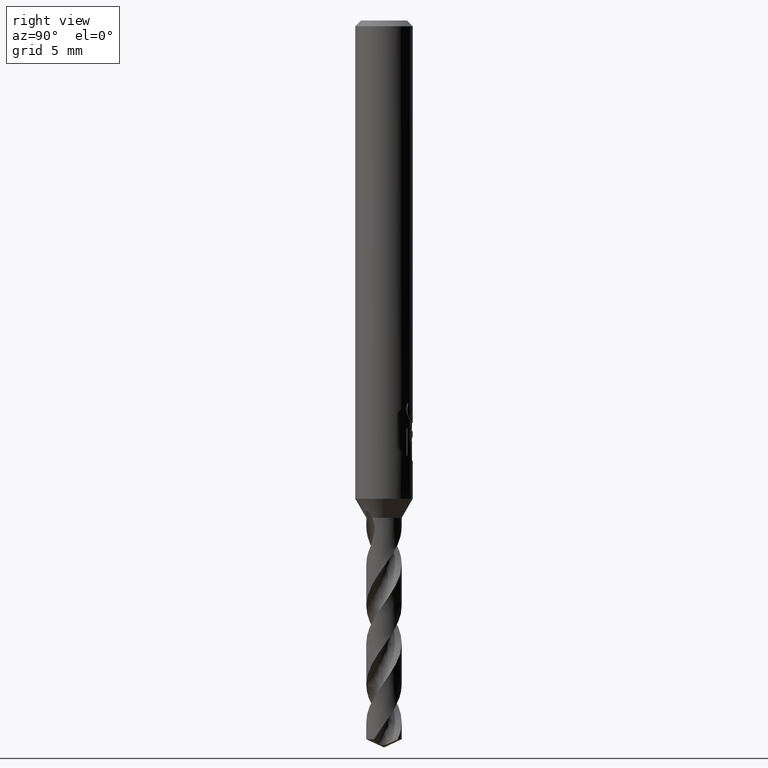
[diagram: clean part render]
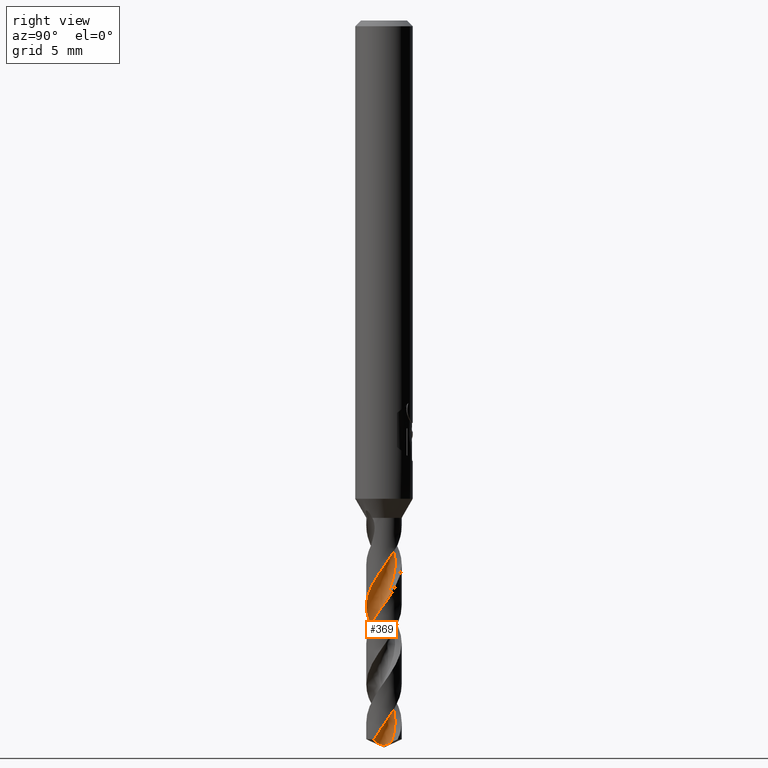
[diagram: same view with one face highlighted and labeled with its STEP entity id]
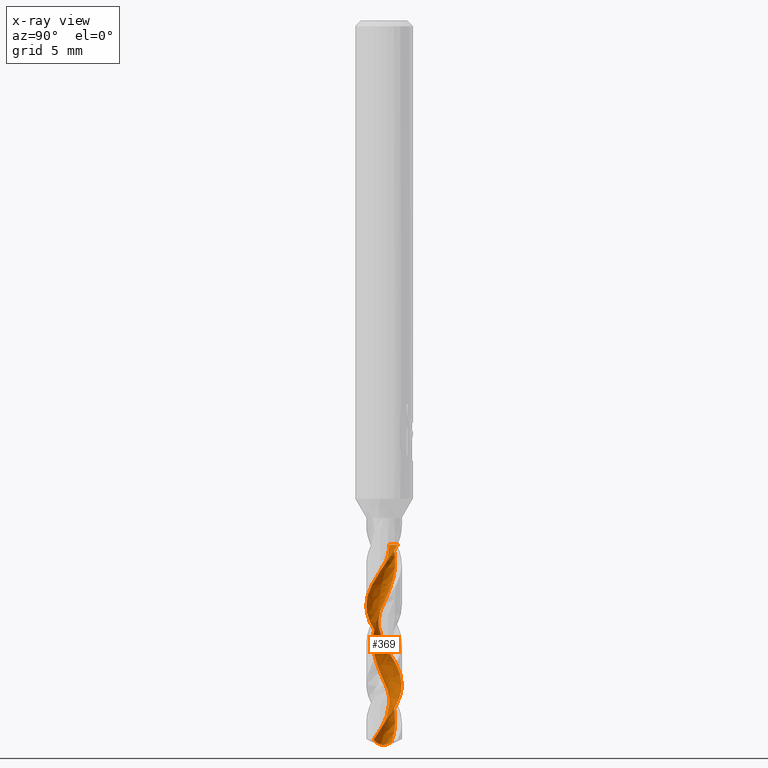
[diagram: x-ray of the same camera — body ghosted, the highlighted face saturated]
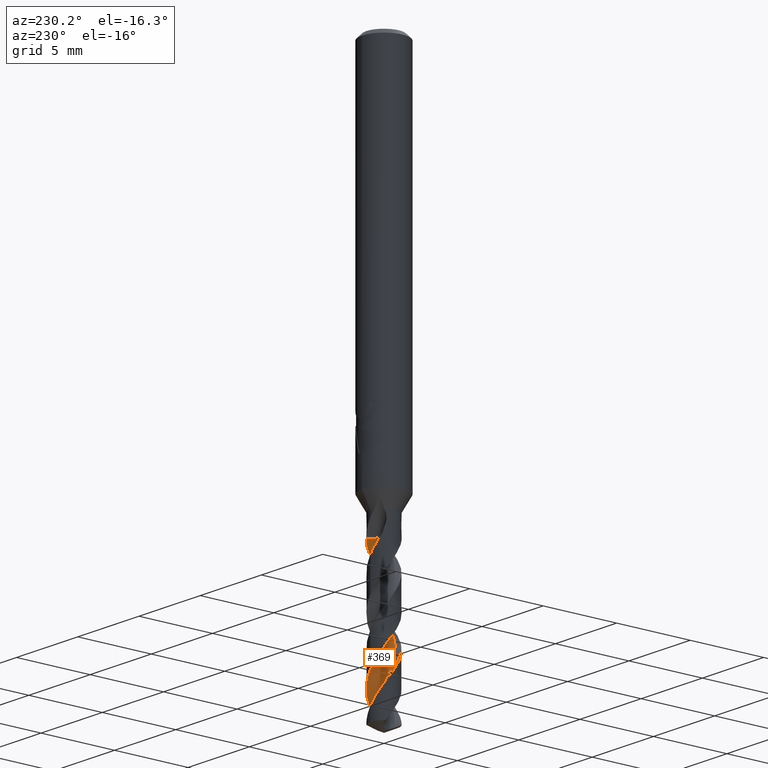
[diagram: same view with one face highlighted and labeled with its STEP entity id]
A machine part, right view. The second image highlights one B-rep face of the part: STEP entity #369.
The next image is the same camera in x-ray: the body ghosted, the highlighted face saturated — about 0% of this face is hidden behind the body in this view.
A second angle (auxiliary view) of the same face is appended — the face is thin or edge-on in the first view.
In plain terms, the highlighted face is a freeform B-spline surface patch.
Its self-contained STEP definition (entity closure, byte-faithful):
#325=VERTEX_POINT('',#858);
#345=VERTEX_POINT('',#879);
#357=EDGE_CURVE('',#755,#523,#892,.T.);
#369=ADVANCED_FACE('',(#904),#905,.F.);
#491=VERTEX_POINT('',#1042);
#493=EDGE_CURVE('',#491,#755,#1044,.T.);
#523=VERTEX_POINT('',#1079);
#553=EDGE_CURVE('',#627,#727,#1114,.T.);
#597=EDGE_CURVE('',#727,#325,#1161,.T.);
#627=VERTEX_POINT('',#1195);
#665=EDGE_CURVE('',#325,#345,#1236,.T.);
#679=EDGE_CURVE('',#523,#627,#1251,.T.);
#727=VERTEX_POINT('',#1300);
#729=EDGE_CURVE('',#345,#491,#1302,.T.);
#755=VERTEX_POINT('',#1330);
#858=CARTESIAN_POINT('',(-9.8243710128972E-015,-0.924939684406462,-30.5909562061072));
#879=CARTESIAN_POINT('',(0.589400108508059,0.712790267500029,-27.4036));
#892=B_SPLINE_CURVE_WITH_KNOTS('',3,(#2009,#2010,#2011,#2012,#2013,#2014,#2015,#2016,#2017,#2018,#2019,#2020,#2021,#2022,#2023,#2024,#2025,#2026,#2027,#2028,#2029,#2030,#2031,#2032,#2033,#2034,#2035,#2036,#2037,#2038,#2039,#2040,#2041,#2042,#2043,#2044,#2045,#2046,#2047,#2048,#2049,#2050,#2051,#2052,#2053,#2054,#2055,#2056,#2057,#2058,#2059,#2060,#2061),.UNSPECIFIED.,.F.,.F.,(4,1,2,2,2,2,1,2,1,2,1,2,1,2,1,2,1,2,1,2,1,2,1,2,1,2,1,2,1,2,1,2,1,4),(0.0,0.232383064868827,0.464766129737653,0.929532259475306,1.39429838921296,1.85906451895061,2.32383064868826,2.78859677842592,3.25336290816357,3.71812903790122,4.18289516763888,4.64766129737653,5.11242742711418,5.57719355685184,6.04195968658949,6.50672581632714,6.97149194606479,7.43625807580245,7.9010242055401,8.36579033527775,8.83055646501541,9.29532259475306,9.76008872449071,10.2248548542284,10.689620983966,11.1543871137037,11.6191532434413,12.083919373179,12.5486855029166,13.0134516326543,13.4782177623919,13.9429838921296,14.4077500218672,14.8725161516049),.UNSPECIFIED.);
#904=FACE_OUTER_BOUND('',#2075,.T.);
#905=B_SPLINE_SURFACE_WITH_KNOTS('',3,3,((#2076,#2077,#2078,#2079,#2080,#2081,#2082,#2083,#2084,#2085,#2086,#2087,#2088,#2089,#2090,#2091,#2092,#2093,#2094,#2095,#2096,#2097,#2098,#2099,#2100,#2101,#2102,#2103,#2104,#2105,#2106,#2107,#2108,#2109,#2110,#2111,#2112,#2113,#2114,#2115,#2116,#2117,#2118,#2119,#2120,#2121,#2122,#2123,#2124,#2125,#2126,#2127,#2128),(#2129,#2130,#2131,#2132,#2133,#2134,#2135,#2136,#2137,#2138,#2139,#2140,#2141,#2142,#2143,#2144,#2145,#2146,#2147,#2148,#2149,#2150,#2151,#2152,#2153,#2154,#2155,#2156,#2157,#2158,#2159,#2160,#2161,#2162,#2163,#2164,#2165,#2166,#2167,#2168,#2169,#2170,#2171,#2172,#2173,#2174,#2175,#2176,#2177,#2178,#2179,#2180,#2181),(#2182,#2183,#2184,#2185,#2186,#2187,#2188,#2189,#2190,#2191,#2192,#2193,#2194,#2195,#2196,#2197,#2198,#2199,#2200,#2201,#2202,#2203,#2204,#2205,#2206,#2207,#2208,#2209,#2210,#2211,#2212,#2213,#2214,#2215,#2216,#2217,#2218,#2219,#2220,#2221,#2222,#2223,#2224,#2225,#2226,#2227,#2228,#2229,#2230,#2231,#2232,#2233,#2234),(#2235,#2236,#2237,#2238,#2239,#2240,#2241,#2242,#2243,#2244,#2245,#2246,#2247,#2248,#2249,#2250,#2251,#2252,#2253,#2254,#2255,#2256,#2257,#2258,#2259,#2260,#2261,#2262,#2263,#2264,#2265,#2266,#2267,#2268,#2269,#2270,#2271,#2272,#2273,#2274,#2275,#2276,#2277,#2278,#2279,#2280,#2281,#2282,#2283,#2284,#2285,#2286,#2287),(#2288,#2289,#2290,#2291,#2292,#2293,#2294,#2295,#2296,#2297,#2298,#2299,#2300,#2301,#2302,#2303,#2304,#2305,#2306,#2307,#2308,#2309,#2310,#2311,#2312,#2313,#2314,#2315,#2316,#2317,#2318,#2319,#2320,#2321,#2322,#2323,#2324,#2325,#2326,#2327,#2328,#2329,#2330,#2331,#2332,#2333,#2334,#2335,#2336,#2337,#2338,#2339,#2340),(#2341,#2342,#2343,#2344,#2345,#2346,#2347,#2348,#2349,#2350,#2351,#2352,#2353,#2354,#2355,#2356,#2357,#2358,#2359,#2360,#2361,#2362,#2363,#2364,#2365,#2366,#2367,#2368,#2369,#2370,#2371,#2372,#2373,#2374,#2375,#2376,#2377,#2378,#2379,#2380,#2381,#2382,#2383,#2384,#2385,#2386,#2387,#2388,#2389,#2390,#2391,#2392,#2393),(#2394,#2395,#2396,#2397,#2398,#2399,#2400,#2401,#2402,#2403,#2404,#2405,#2406,#2407,#2408,#2409,#2410,#2411,#2412,#2413,#2414,#2415,#2416,#2417,#2418,#2419,#2420,#2421,#2422,#2423,#2424,#2425,#2426,#2427,#2428,#2429,#2430,#2431,#2432,#2433,#2434,#2435,#2436,#2437,#2438,#2439,#2440,#2441,#2442,#2443,#2444,#2445,#2446),(#2447,#2448,#2449,#2450,#2451,#2452,#2453,#2454,#2455,#2456,#2457,#2458,#2459,#2460,#2461,#2462,#2463,#2464,#2465,#2466,#2467,#2468,#2469,#2470,#2471,#2472,#2473,#2474,#2475,#2476,#2477,#2478,#2479,#2480,#2481,#2482,#2483,#2484,#2485,#2486,#2487,#2488,#2489,#2490,#2491,#2492,#2493,#2494,#2495,#2496,#2497,#2498,#2499),(#2500,#2501,#2502,#2503,#2504,#2505,#2506,#2507,#2508,#2509,#2510,#2511,#2512,#2513,#2514,#2515,#2516,#2517,#2518,#2519,#2520,#2521,#2522,#2523,#2524,#2525,#2526,#2527,#2528,#2529,#2530,#2531,#2532,#2533,#2534,#2535,#2536,#2537,#2538,#2539,#2540,#2541,#2542,#2543,#2544,#2545,#2546,#2547,#2548,#2549,#2550,#2551,#2552)),.UNSPECIFIED.,.F.,.F.,.F.,(4,1,1,1,1,1,4),(4,1,2,2,2,2,1,2,1,2,1,2,1,2,1,2,1,2,1,2,1,2,1,2,1,2,1,2,1,2,1,2,1,4),(-1.7374656412856E-016,0.589055375925862,1.17811075185172,1.76716612777759,2.35622150370345,2.74892508765402,3.1416286716046),(0.0,0.232383064868827,0.464766129737653,0.929532259475306,1.39429838921296,1.85906451895061,2.32383064868826,2.78859677842592,3.25336290816357,3.71812903790122,4.18289516763888,4.64766129737653,5.11242742711418,5.57719355685184,6.04195968658949,6.50672581632714,6.97149194606479,7.43625807580245,7.9010242055401,8.36579033527775,8.83055646501541,9.29532259475306,9.76008872449071,10.2248548542284,10.689620983966,11.1543871137037,11.6191532434413,12.083919373179,12.5486855029166,13.0134516326543,13.4782177623919,13.9429838921296,14.4077500218672,14.8725161516049),.UNSPECIFIED.);
#1042=CARTESIAN_POINT('',(-0.0862127843489932,0.283549462839842,-27.4036));
#1044=CIRCLE('',#3266,0.61666667);
#1079=CARTESIAN_POINT('',(0.435395623156242,0.386193345179289,-37.7286126892552));
#1114=B_SPLINE_CURVE_WITH_KNOTS('',3,(#3588,#3589,#3590,#3591,#3592,#3593,#3594,#3595,#3596,#3597,#3598,#3599,#3600,#3601,#3602,#3603,#3604,#3605,#3606,#3607,#3608,#3609,#3610,#3611,#3612,#3613,#3614,#3615,#3616,#3617,#3618,#3619,#3620,#3621,#3622,#3623,#3624,#3625,#3626,#3627,#3628,#3629,#3630,#3631,#3632,#3633,#3634,#3635,#3636,#3637,#3638,#3639,#3640,#3641,#3642,#3643,#3644,#3645,#3646,#3647,#3648,#3649,#3650,#3651,#3652,#3653,#3654,#3655,#3656,#3657,#3658,#3659,#3660,#3661,#3662,#3663,#3664,#3665),.UNSPECIFIED.,.F.,.F.,(4,2,2,2,2,2,2,2,2,2,2,2,2,2,2,2,2,2,2,2,2,2,2,2,2,2,2,2,2,2,2,2,2,2,2,2,2,2,4),(0.0,0.175575967498542,0.360828519478574,1.05434292255817,1.14884404777667,1.83973464778452,2.04112506220054,2.49938006816865,2.93639938622632,3.47251715777154,3.67386599290652,4.13394250316937,4.57152570850511,5.10815653292086,5.3094364090775,5.77050128530134,6.20751829246539,6.74469876623538,6.94654488725072,7.40809844879235,7.84943071925,8.3871396234596,8.58765552124518,9.04980391125373,9.48430552195443,10.0217875624723,10.2183175586294,10.6105977311638,11.5362222291659,11.6507062022349,11.9174526200369,12.0692040576392,12.1504385658655,12.1848521361453,12.2009557850324,12.218424534362,12.2468275413846,12.3092312670282,12.3409704378504),.UNSPECIFIED.);
#1161=B_SPLINE_CURVE_WITH_KNOTS('',3,(#3948,#3949,#3950,#3951,#3952,#3953,#3954,#3955,#3956,#3957,#3958,#3959,#3960,#3961,#3962,#3963,#3964,#3965,#3966,#3967,#3968,#3969,#3970,#3971,#3972,#3973,#3974,#3975,#3976,#3977,#3978,#3979,#3980,#3981,#3982,#3983,#3984,#3985,#3986,#3987,#3988,#3989,#3990,#3991,#3992,#3993,#3994,#3995,#3996,#3997,#3998,#3999,#4000,#4001,#4002,#4003,#4004,#4005,#4006,#4007,#4008,#4009,#4010,#4011,#4012,#4013,#4014,#4015,#4016,#4017,#4018,#4019,#4020,#4021,#4022,#4023,#4024,#4025),.UNSPECIFIED.,.F.,.F.,(4,2,2,2,2,2,2,2,2,2,2,2,2,2,2,2,2,2,2,2,2,2,2,2,2,2,2,2,2,2,2,2,2,2,2,2,2,2,4),(0.0,0.175575967498542,0.360828519478574,1.05434292255817,1.14884404777667,1.83973464778452,2.04112506220054,2.49938006816865,2.93639938622632,3.47251715777154,3.67386599290652,4.13394250316937,4.57152570850511,5.10815653292086,5.3094364090775,5.77050128530134,6.20751829246539,6.74469876623538,6.94654488725072,7.40809844879235,7.84943071925,8.3871396234596,8.58765552124518,9.04980391125373,9.48430552195443,10.0217875624723,10.2183175586294,10.6105977311638,11.5362222291659,11.6507062022349,11.9174526200369,12.0692040576392,12.1504385658655,12.1848521361453,12.2009557850324,12.218424534362,12.2468275413846,12.3092312670282,12.3409704378504),.UNSPECIFIED.);
#1195=CARTESIAN_POINT('',(0.765392373126078,-0.519422289818632,-37.5686654162066));
#1236=B_SPLINE_CURVE_WITH_KNOTS('',3,(#4608,#4609,#4610,#4611,#4612,#4613,#4614,#4615,#4616,#4617,#4618,#4619,#4620,#4621,#4622,#4623,#4624,#4625,#4626,#4627,#4628,#4629,#4630,#4631,#4632,#4633,#4634,#4635,#4636,#4637,#4638,#4639,#4640,#4641,#4642,#4643,#4644,#4645,#4646,#4647,#4648,#4649,#4650,#4651,#4652,#4653,#4654,#4655,#4656,#4657,#4658,#4659,#4660,#4661,#4662,#4663,#4664,#4665,#4666,#4667,#4668,#4669,#4670,#4671,#4672,#4673,#4674,#4675,#4676,#4677,#4678,#4679,#4680,#4681,#4682,#4683,#4684,#4685),.UNSPECIFIED.,.F.,.F.,(4,2,2,2,2,2,2,2,2,2,2,2,2,2,2,2,2,2,2,2,2,2,2,2,2,2,2,2,2,2,2,2,2,2,2,2,2,2,4),(0.0,0.175575967498542,0.360828519478574,1.05434292255817,1.14884404777667,1.83973464778452,2.04112506220054,2.49938006816865,2.93639938622632,3.47251715777154,3.67386599290652,4.13394250316937,4.57152570850511,5.10815653292086,5.3094364090775,5.77050128530134,6.20751829246539,6.74469876623538,6.94654488725072,7.40809844879235,7.84943071925,8.3871396234596,8.58765552124518,9.04980391125373,9.48430552195443,10.0217875624723,10.2183175586294,10.6105977311638,11.5362222291659,11.6507062022349,11.9174526200369,12.0692040576392,12.1504385658655,12.1848521361453,12.2009557850324,12.218424534362,12.2468275413846,12.3092312670282,12.3409704378504),.UNSPECIFIED.);
#1251=B_SPLINE_CURVE_WITH_KNOTS('',3,(#4709,#4710,#4711,#4712,#4713,#4714,#4715,#4716,#4717,#4718,#4719,#4720,#4721,#4722,#4723,#4724,#4725,#4726,#4727,#4728),.UNSPECIFIED.,.F.,.F.,(4,2,2,2,2,2,2,2,2,4),(0.0,0.335921174528712,0.617280993806055,0.945095798314865,1.31816019401058,1.75852852820304,2.28134823825684,2.89579744745309,3.60210681964721,4.34662836765787),.UNSPECIFIED.);
#1300=CARTESIAN_POINT('',(1.6430154934895E-014,0.924975379347988,-34.7203845617481));
#1302=CIRCLE('',#5038,0.61666667);
#1330=CARTESIAN_POINT('',(-0.436049184018015,0.458117485981984,-27.4036));
#2009=CARTESIAN_POINT('',(-0.436049184018015,0.458117485981983,-27.4036));
#2010=CARTESIAN_POINT('',(-0.388018113692457,0.458308398749172,-27.4588094701965));
#2011=CARTESIAN_POINT('',(-0.310362147643569,0.466875463216973,-27.5685655765088));
#2012=CARTESIAN_POINT('',(-0.269431588778578,0.491755183385965,-27.6782577937861));
#2013=CARTESIAN_POINT('',(-0.22933071779983,0.545275223094985,-27.8450788026966));
#2014=CARTESIAN_POINT('',(-0.183911922747665,0.565837492478665,-27.9566141969582));
#2015=CARTESIAN_POINT('',(-0.0809245630584107,0.577513757124977,-28.1762228582782));
#2016=CARTESIAN_POINT('',(-0.0313138013266637,0.580403529647803,-28.2862176788537));
#2017=CARTESIAN_POINT('',(0.0649521798914007,0.58143823905274,-28.5076622820086));
#2018=CARTESIAN_POINT('',(0.113901942138436,0.573604738994574,-28.6182256088633));
#2019=CARTESIAN_POINT('',(0.207744863537189,0.548372192393161,-28.8389408144761));
#2020=CARTESIAN_POINT('',(0.298603127781308,0.50662651128979,-29.0598485930561));
#2021=CARTESIAN_POINT('',(0.376061795381994,0.445068223976989,-29.2804831246772));
#2022=CARTESIAN_POINT('',(0.446697303400808,0.379521545454021,-29.5014227997122));
#2023=CARTESIAN_POINT('',(0.506601928129123,0.299856782655685,-29.7225476843233));
#2024=CARTESIAN_POINT('',(0.544521172092551,0.208219731489743,-29.9432198516808));
#2025=CARTESIAN_POINT('',(0.574453502570387,0.116451894676616,-30.1640642452165));
#2026=CARTESIAN_POINT('',(0.588336732168083,0.0177273976438766,-30.3851155944173));
#2027=CARTESIAN_POINT('',(0.577362368754936,-0.0807688632054212,-30.6057820886998));
#2028=CARTESIAN_POINT('',(0.559261593054206,-0.175559412710113,-30.8266543905584));
#2029=CARTESIAN_POINT('',(0.523698704145092,-0.26870732425882,-31.0477249957233));
#2030=CARTESIAN_POINT('',(0.466469770616361,-0.349642038508436,-31.2683925019693));
#2031=CARTESIAN_POINT('',(0.404823070411014,-0.423894249652423,-31.4892591030444));
#2032=CARTESIAN_POINT('',(0.328692348844049,-0.488273769799817,-31.7103253046648));
#2033=CARTESIAN_POINT('',(0.239498590644078,-0.531498314532017,-31.9309916997195));
#2034=CARTESIAN_POINT('',(0.149661834923096,-0.566737064716098,-32.1518588236204));
#2035=CARTESIAN_POINT('',(0.0519053149559096,-0.586328310279789,-32.3729266507694));
#2036=CARTESIAN_POINT('',(-0.0470782153739933,-0.581067826452587,-32.5935943390631));
#2037=CARTESIAN_POINT('',(-0.142765906011073,-0.568497730677044,-32.8144613026757));
#2038=CARTESIAN_POINT('',(-0.237822758887305,-0.538412403880764,-33.0355276116844));
#2039=CARTESIAN_POINT('',(-0.321947237782526,-0.48600014619981,-33.2561942779116));
#2040=CARTESIAN_POINT('',(-0.399658876055839,-0.428786347844071,-33.4770619888707));
#2041=CARTESIAN_POINT('',(-0.468355514004404,-0.356529577933913,-33.6981298625762));
#2042=CARTESIAN_POINT('',(-0.516683950754237,-0.269988167848635,-33.9187969607869));
#2043=CARTESIAN_POINT('',(-0.55707363314088,-0.182339629103713,-34.1396633893122));
#2044=CARTESIAN_POINT('',(-0.582307032779719,-0.0858827594877128,-34.3607299813749));
#2045=CARTESIAN_POINT('',(-0.582813943815937,0.0132354405789519,-34.5813972143987));
#2046=CARTESIAN_POINT('',(-0.575835198181976,0.109488665694968,-34.8022648709486));
#2047=CARTESIAN_POINT('',(-0.551331491525377,0.206132180812105,-35.0233320838216));
#2048=CARTESIAN_POINT('',(-0.503897491703326,0.293160892536429,-35.2439996874878));
#2049=CARTESIAN_POINT('',(-0.451295196127029,0.374066324752721,-35.4648682419527));
#2050=CARTESIAN_POINT('',(-0.38314213010311,0.446843852044265,-35.6859356632912));
#2051=CARTESIAN_POINT('',(-0.29954836029823,0.500113688024164,-35.9065976203724));
#2052=CARTESIAN_POINT('',(-0.214400051802946,0.545528767377987,-36.1274562225476));
#2053=CARTESIAN_POINT('',(-0.119598148680925,0.576343768746146,-36.348524074078));
#2054=CARTESIAN_POINT('',(-0.0206608336939053,0.582597634534408,-36.5692130074279));
#2055=CARTESIAN_POINT('',(0.0758809005376803,0.58114626953933,-36.7901098856405));
#2056=CARTESIAN_POINT('',(0.173819778525715,0.562220943759083,-37.0111677306778));
#2057=CARTESIAN_POINT('',(0.263419419965529,0.520196938505774,-37.2317656114492));
#2058=CARTESIAN_POINT('',(0.347266613787791,0.472932578019267,-37.4525557717652));
#2059=CARTESIAN_POINT('',(0.423882502018001,0.409159353682629,-37.6736620647546));
#2060=CARTESIAN_POINT('',(0.481294564042037,0.327520856098801,-37.8943349851404));
#2061=CARTESIAN_POINT('',(0.505885980768555,0.285552091569948,-38.0046889861445));
#2075=EDGE_LOOP('',(#5330,#5331,#5332,#5333,#5334,#5335,#5336));
#2076=CARTESIAN_POINT('',(0.436049184018018,1.33021585401801,-27.4036));
#2077=CARTESIAN_POINT('',(0.490641011605617,1.32384594578388,-27.4586401066499));
#2078=CARTESIAN_POINT('',(0.600847719778036,1.30026195463468,-27.5697809515842));
#2079=CARTESIAN_POINT('',(0.707909495900366,1.24684140092777,-27.6812278171122));
#2080=CARTESIAN_POINT('',(0.859151846995306,1.13964674066815,-27.8457187030904));
#2081=CARTESIAN_POINT('',(0.950321078307188,1.05965668408763,-27.9548486449772));
#2082=CARTESIAN_POINT('',(1.11608294002013,0.889772337390613,-28.1770687220258));
#2083=CARTESIAN_POINT('',(1.18802953269398,0.793865918615728,-28.2880118086532));
#2084=CARTESIAN_POINT('',(1.30283265699569,0.583591214800348,-28.5082482337456));
#2085=CARTESIAN_POINT('',(1.3474884248963,0.471609680288934,-28.6185320538473));
#2086=CARTESIAN_POINT('',(1.40634135980175,0.239356787831511,-28.8395638248641));
#2087=CARTESIAN_POINT('',(1.4372319577941,0.000959788502445144,-29.0603848250969));
#2088=CARTESIAN_POINT('',(1.40843953643918,-0.237983973550078,-29.2815143619077));
#2089=CARTESIAN_POINT('',(1.34731123357024,-0.469739559949731,-29.5023017663111));
#2090=CARTESIAN_POINT('',(1.25881039210906,-0.693348540892654,-29.7228810475595));
#2091=CARTESIAN_POINT('',(1.11810324247092,-0.888746028640954,-29.9439653087376));
#2092=CARTESIAN_POINT('',(0.952655999168427,-1.06222473336281,-30.1648574491973));
#2093=CARTESIAN_POINT('',(0.767153895499816,-1.21528261235607,-30.3855186636245));
#2094=CARTESIAN_POINT('',(0.549569937203083,-1.31833043039658,-30.6066101273013));
#2095=CARTESIAN_POINT('',(0.320919655624186,-1.39026502085459,-30.8274715470545));
#2096=CARTESIAN_POINT('',(0.0845692262840559,-1.43465772357647,-31.0481113078575));
#2097=CARTESIAN_POINT('',(-0.155729656173832,-1.41978185896046,-31.2692014094115));
#2098=CARTESIAN_POINT('',(-0.390686560868241,-1.3723041348421,-31.4900690750099));
#2099=CARTESIAN_POINT('',(-0.619075898336271,-1.29698638017256,-31.7107137396177));
#2100=CARTESIAN_POINT('',(-0.822280609982952,-1.16786156943398,-31.9318051447233));
#2101=CARTESIAN_POINT('',(-1.00505520308078,-1.01277220488117,-32.1526722591409));
#2102=CARTESIAN_POINT('',(-1.16862813132337,-0.836482696049396,-32.3733151114613));
#2103=CARTESIAN_POINT('',(-1.28416253024357,-0.625257503345497,-32.5944050550798));
#2104=CARTESIAN_POINT('',(-1.36927236260286,-0.401172401215405,-32.8152723405736));
#2105=CARTESIAN_POINT('',(-1.42732900327563,-0.167799078678371,-33.0359168896575));
#2106=CARTESIAN_POINT('',(-1.42643725695588,0.0729586272516712,-33.2570079792875));
#2107=CARTESIAN_POINT('',(-1.3926863921662,0.310277241027481,-33.4778744288076));
#2108=CARTESIAN_POINT('',(-1.3307622145918,0.542655762010555,-33.6985172237145));
#2109=CARTESIAN_POINT('',(-1.21366626532064,0.75302059448158,-33.9196078311318));
#2110=CARTESIAN_POINT('',(-1.06946672273682,0.94450113940707,-34.1404757253032));
#2111=CARTESIAN_POINT('',(-0.902985928882503,1.11804571846209,-34.3611199752364));
#2112=CARTESIAN_POINT('',(-0.698832141741806,1.24566040502008,-34.5822104261527));
#2113=CARTESIAN_POINT('',(-0.48006991951741,1.3436466992686,-34.8030769021991));
#2114=CARTESIAN_POINT('',(-0.25046293144459,1.4151645786571,-35.0237203723811));
#2115=CARTESIAN_POINT('',(-0.0100582908744266,1.42826273045728,-35.2448104319524));
#2116=CARTESIAN_POINT('',(0.228822705298802,1.40835763020544,-35.465676076596));
#2117=CARTESIAN_POINT('',(0.464408320737371,1.36004323601434,-35.6863196346843));
#2118=CARTESIAN_POINT('',(0.681221078103344,1.25537649377807,-35.907415928019));
#2119=CARTESIAN_POINT('',(0.880751535033152,1.1225548450837,-36.1282920717795));
#2120=CARTESIAN_POINT('',(1.06366340649448,0.966441150725169,-36.3489339829457));
#2121=CARTESIAN_POINT('',(1.20293324480722,0.770054287904956,-36.5700004722434));
#2122=CARTESIAN_POINT('',(1.31351675739057,0.557364360483518,-36.7908362370829));
#2123=CARTESIAN_POINT('',(1.39833447723216,0.332280586966371,-37.011493766299));
#2124=CARTESIAN_POINT('',(1.42526651929867,0.0929803912692099,-37.232651670344));
#2125=CARTESIAN_POINT('',(1.41894297749581,-0.146662128448262,-37.4535795327477));
#2126=CARTESIAN_POINT('',(1.38417959990483,-0.384451108641236,-37.6741389861653));
#2127=CARTESIAN_POINT('',(1.29306727951015,-0.606845735793823,-37.895010146697));
#2128=CARTESIAN_POINT('',(1.23330219860176,-0.710427998311311,-38.0053475114472));
#2129=CARTESIAN_POINT('',(0.521665483585571,1.24459407637409,-27.4036));
#2130=CARTESIAN_POINT('',(0.575613176216593,1.23758008046435,-27.4586214747827));
#2131=CARTESIAN_POINT('',(0.682663392313443,1.21080049871082,-27.5699146566135));
#2132=CARTESIAN_POINT('',(0.782037052676886,1.15088732483165,-27.6815545531194));
#2133=CARTESIAN_POINT('',(0.917501521322022,1.03278224741557,-27.8457890995935));
#2134=CARTESIAN_POINT('',(0.998798533797481,0.94830076305749,-27.9546544143114));
#2135=CARTESIAN_POINT('',(1.1467355330677,0.772254093395513,-28.1771617765949));
#2136=CARTESIAN_POINT('',(1.20898230776289,0.674155119610133,-28.2882091830219));
#2137=CARTESIAN_POINT('',(1.30304014181326,0.462061194130311,-28.5083126952369));
#2138=CARTESIAN_POINT('',(1.33747108834697,0.35050154265356,-28.6185657662387));
#2139=CARTESIAN_POINT('',(1.37599969976679,0.121684484111793,-28.8396323630649));
#2140=CARTESIAN_POINT('',(1.38758407778832,-0.110824522936322,-29.0604438164619));
#2141=CARTESIAN_POINT('',(1.34137696072261,-0.339336375667177,-29.2816278100706));
#2142=CARTESIAN_POINT('',(1.26393139092324,-0.558155418694565,-29.5023984621519));
#2143=CARTESIAN_POINT('',(1.16129920795486,-0.767194160821777,-29.7229177213757));
#2144=CARTESIAN_POINT('',(1.01040582723087,-0.9450544700808,-29.9440473176666));
#2145=CARTESIAN_POINT('',(0.836937165233126,-1.09935134522797,-30.1649447103663));
#2146=CARTESIAN_POINT('',(0.646101471252239,-1.23283426712031,-30.3855630059744));
#2147=CARTESIAN_POINT('',(0.428071317469079,-1.31559793539175,-30.6067012207672));
#2148=CARTESIAN_POINT('',(0.201665610980908,-1.36686171527951,-30.8275614436364));
#2149=CARTESIAN_POINT('',(-0.0298976168614706,-1.39154212635222,-31.0481538069326));
#2150=CARTESIAN_POINT('',(-0.260789602247227,-1.35869346482625,-31.2692903974848));
#2151=CARTESIAN_POINT('',(-0.48379500983366,-1.2942012443212,-31.490158181961));
#2152=CARTESIAN_POINT('',(-0.698469001554225,-1.20393584030918,-31.7107564703194));
#2153=CARTESIAN_POINT('',(-0.884752753629427,-1.06361842153958,-31.931894635045));
#2154=CARTESIAN_POINT('',(-1.04884141817208,-0.899405409527573,-32.1527617440591));
#2155=CARTESIAN_POINT('',(-1.19318342259598,-0.716654945236486,-32.3733578468712));
#2156=CARTESIAN_POINT('',(-1.28849694740527,-0.503805508045769,-32.594494244497));
#2157=CARTESIAN_POINT('',(-1.35284113843412,-0.280759571325752,-32.815361562412));
#2158=CARTESIAN_POINT('',(-1.39093996650907,-0.0510194038272896,-33.0359597149478));
#2159=CARTESIAN_POINT('',(-1.37155746015583,0.181391136087675,-33.2570974964914));
#2160=CARTESIAN_POINT('',(-1.32012499965717,0.407766245148556,-33.4779638055195));
#2161=CARTESIAN_POINT('',(-1.2424811760392,0.627320483621231,-33.6985598384653));
#2162=CARTESIAN_POINT('',(-1.11322924721743,0.821444192187812,-33.9196970355971));
#2163=CARTESIAN_POINT('',(-0.958836492804278,0.994802194377386,-34.1405650918746));
#2164=CARTESIAN_POINT('',(-0.784788163965959,1.14952486909485,-34.3611628787955));
#2165=CARTESIAN_POINT('',(-0.577837353598325,1.25704666498963,-34.5822998885417));
#2166=CARTESIAN_POINT('',(-0.358905660852794,1.33424092297012,-34.8031662349031));
#2167=CARTESIAN_POINT('',(-0.131766039652923,1.38562273519557,-35.0237630874396));
#2168=CARTESIAN_POINT('',(0.101379768186675,1.37977600798935,-35.2448996250537));
#2169=CARTESIAN_POINT('',(0.330363007241107,1.34158315246926,-35.4657649454851));
#2170=CARTESIAN_POINT('',(0.554059821828049,1.27683133905263,-35.686361878073));
#2171=CARTESIAN_POINT('',(0.755366549527129,1.15908617260728,-35.907505948759));
#2172=CARTESIAN_POINT('',(0.937398088194085,1.01503552118367,-36.1283840269865));
#2173=CARTESIAN_POINT('',(1.1019578420084,0.850272161043735,-36.3489790739678));
#2174=CARTESIAN_POINT('',(1.22133307118738,0.649926252832945,-36.5700871070954));
#2175=CARTESIAN_POINT('',(1.31117801282026,0.435858432398956,-36.7909161391252));
#2176=CARTESIAN_POINT('',(1.37575603133106,0.212063479988012,-37.0115296369986));
#2177=CARTESIAN_POINT('',(1.38332043918374,-0.0210836160717291,-37.2327491454644));
#2178=CARTESIAN_POINT('',(1.35811027057671,-0.251872914522897,-37.4536921593917));
#2179=CARTESIAN_POINT('',(1.30626316009927,-0.478726631639288,-37.674191451416));
#2180=CARTESIAN_POINT('',(1.20133242993698,-0.686539280952576,-37.8950844237197));
#2181=CARTESIAN_POINT('',(1.13551865708723,-0.781839575238212,-38.0054199566702));
#2182=CARTESIAN_POINT('',(0.640777236461975,1.02162669933406,-27.4036));
#2183=CARTESIAN_POINT('',(0.693047542659751,1.01371663489713,-27.4585943375505));
#2184=CARTESIAN_POINT('',(0.791854112366787,0.982467466727397,-27.5701093964403));
#2185=CARTESIAN_POINT('',(0.871932094631318,0.914245887817524,-27.6820304409635));
#2186=CARTESIAN_POINT('',(0.969260323255015,0.783913786902192,-27.8458916306473));
#2187=CARTESIAN_POINT('',(1.02811193245252,0.696446467857032,-27.9543715194282));
#2188=CARTESIAN_POINT('',(1.13670311080269,0.518899059878593,-28.1772973095771));
#2189=CARTESIAN_POINT('',(1.17824292701482,0.422302113507125,-28.2884966571651));
#2190=CARTESIAN_POINT('',(1.22975462775269,0.219154744120385,-28.508406582219));
#2191=CARTESIAN_POINT('',(1.24401529017753,0.114638568460107,-28.6186148680858));
#2192=CARTESIAN_POINT('',(1.24402558815671,-0.094989365817263,-28.8397321881102));
#2193=CARTESIAN_POINT('',(1.22061259720478,-0.304027960515552,-29.0605297375779));
#2194=CARTESIAN_POINT('',(1.14594236247704,-0.501139138902755,-29.2817930445677));
#2195=CARTESIAN_POINT('',(1.04374494876309,-0.684219466122056,-29.5025393001439));
#2196=CARTESIAN_POINT('',(0.921718500355765,-0.855581469729715,-29.7229711359759));
#2197=CARTESIAN_POINT('',(0.761111195824945,-0.992230473241343,-29.9441667620925));
#2198=CARTESIAN_POINT('',(0.583250662967708,-1.10334332012675,-30.1650718060268));
#2199=CARTESIAN_POINT('',(0.39363100566421,-1.19448685507472,-30.3856275896544));
#2200=CARTESIAN_POINT('',(0.187010463184095,-1.23645826594589,-30.6068338976788));
#2201=CARTESIAN_POINT('',(-0.0223757567414225,-1.24778913186603,-30.8276923767935));
#2202=CARTESIAN_POINT('',(-0.232421343394278,-1.23599341553413,-31.0482157049095));
#2203=CARTESIAN_POINT('',(-0.433621863922277,-1.17294512777126,-31.2694200108484));
#2204=CARTESIAN_POINT('',(-0.622433572834747,-1.08171083177896,-31.4902879620962));
#2205=CARTESIAN_POINT('',(-0.800643614202509,-0.969901975410867,-31.7108187125621));
#2206=CARTESIAN_POINT('',(-0.946336780061753,-0.817486500715799,-31.9320249690576));
#2207=CARTESIAN_POINT('',(-1.06756364836787,-0.646378957904449,-32.1528920855613));
#2208=CARTESIAN_POINT('',(-1.16956986561096,-0.462383766336886,-32.3734200888313));
#2209=CARTESIAN_POINT('',(-1.22350313018701,-0.258552178629167,-32.5946241436459));
#2210=CARTESIAN_POINT('',(-1.24699396399574,-0.0501751850919938,-32.8154915173394));
#2211=CARTESIAN_POINT('',(-1.24742632975129,0.160203886959135,-33.0360220884285));
#2212=CARTESIAN_POINT('',(-1.19616680634939,0.364725877880718,-33.25722787527));
#2213=CARTESIAN_POINT('',(-1.11604832376559,0.558516404828089,-33.4780939838174));
#2214=CARTESIAN_POINT('',(-1.01477845786898,0.74291860286258,-33.6986219048324));
#2215=CARTESIAN_POINT('',(-0.871091666947712,0.897225613596356,-33.9198269619794));
#2216=CARTESIAN_POINT('',(-0.707326059271504,1.02819867555496,-34.1406952522935));
#2217=CARTESIAN_POINT('',(-0.529574341260677,1.14073159080982,-34.3612253680106));
#2218=CARTESIAN_POINT('',(-0.329220905275055,1.20641759024948,-34.582430189312));
#2219=CARTESIAN_POINT('',(-0.122559670914024,1.2419727995263,-34.8032963472695));
#2220=CARTESIAN_POINT('',(0.0874396514030273,1.25462507615811,-35.0238253049293));
#2221=CARTESIAN_POINT('',(0.294595682916966,1.21533413818707,-35.2450295266757));
#2222=CARTESIAN_POINT('',(0.49271583306195,1.14661015464331,-35.4658943892404));
#2223=CARTESIAN_POINT('',(0.682694138952099,1.05623109542889,-35.6864233979255));
#2224=CARTESIAN_POINT('',(0.845093262531216,0.921762510695905,-35.9076370702121));
#2225=CARTESIAN_POINT('',(0.985357542826056,0.765891617287791,-36.1285179515477));
#2226=CARTESIAN_POINT('',(1.1080097830966,0.594978199207584,-36.3490447594586));
#2227=CARTESIAN_POINT('',(1.18524063314323,0.398788050611741,-36.5702132752308));
#2228=CARTESIAN_POINT('',(1.23282050898951,0.194544204877919,-36.7910325301844));
#2229=CARTESIAN_POINT('',(1.25774724743069,-0.0144019877154079,-37.0115818734494));
#2230=CARTESIAN_POINT('',(1.23035235107774,-0.223511868468579,-37.2328911200106));
#2231=CARTESIAN_POINT('',(1.17278123325581,-0.425161583323425,-37.4538561958129));
#2232=CARTESIAN_POINT('',(1.09343748490812,-0.619809709053071,-37.6742678708889));
#2233=CARTESIAN_POINT('',(0.969744704803551,-0.790111978039405,-37.895192601673));
#2234=CARTESIAN_POINT('',(0.896869927642352,-0.865199239932285,-38.005525472363));
#2235=CARTESIAN_POINT('',(0.60360379639425,0.644148015634022,-27.4036000000001));
#2236=CARTESIAN_POINT('',(0.653034334810017,0.636517620388697,-27.4585975721432));
#2237=CARTESIAN_POINT('',(0.737829774242597,0.606560931827866,-27.5700861848734));
#2238=CARTESIAN_POINT('',(0.786907870389952,0.544050449189159,-27.6819737185578));
#2239=CARTESIAN_POINT('',(0.826459122445216,0.430241927020278,-27.8458794097685));
#2240=CARTESIAN_POINT('',(0.854815374802801,0.357752613953721,-27.9544052384632));
#2241=CARTESIAN_POINT('',(0.913059662976497,0.211120395478186,-28.1772811550085));
#2242=CARTESIAN_POINT('',(0.930013004139801,0.13365257812836,-28.2884623922969));
#2243=CARTESIAN_POINT('',(0.935890362382796,-0.0228763911320624,-28.5083953916167));
#2244=CARTESIAN_POINT('',(0.930851803961818,-0.101795433817824,-28.6186090161489));
#2245=CARTESIAN_POINT('',(0.898789159454718,-0.255381101644609,-28.8397202890456));
#2246=CARTESIAN_POINT('',(0.851264370999531,-0.405969190300479,-29.0605194962632));
#2247=CARTESIAN_POINT('',(0.767244189367083,-0.540179631089814,-29.2817733507496));
#2248=CARTESIAN_POINT('',(0.663942817239007,-0.658038667424599,-29.5025225123495));
#2249=CARTESIAN_POINT('',(0.549112704345226,-0.766225601645831,-29.7229647699676));
#2250=CARTESIAN_POINT('',(0.410726245351684,-0.84335600639708,-29.944152524871));
#2251=CARTESIAN_POINT('',(0.263371412210213,-0.896923564019662,-30.1650566574637));
#2252=CARTESIAN_POINT('',(0.110551304489213,-0.936248882446971,-30.3856198922175));
#2253=CARTESIAN_POINT('',(-0.0478394599001426,-0.936827127405663,-30.6068180823059));
#2254=CARTESIAN_POINT('',(-0.202711855772335,-0.912511890220893,-30.8276767717643));
#2255=CARTESIAN_POINT('',(-0.355511273292584,-0.873131888671463,-31.0482083272112));
#2256=CARTESIAN_POINT('',(-0.494496737990761,-0.797142543614309,-31.2694045604497));
#2257=CARTESIAN_POINT('',(-0.618356595931967,-0.701033354666229,-31.4902724946773));
#2258=CARTESIAN_POINT('',(-0.73311396603467,-0.592728401137634,-31.7108112919466));
#2259=CARTESIAN_POINT('',(-0.818076342573822,-0.459041562673325,-31.9320094363477));
#2260=CARTESIAN_POINT('',(-0.880074491839949,-0.315048368625415,-32.1528765476474));
#2261=CARTESIAN_POINT('',(-0.928216382467038,-0.1647791609381,-32.3734126710869));
#2262=CARTESIAN_POINT('',(-0.938029677453319,-0.00668288124514367,-32.594608660681));
#2263=CARTESIAN_POINT('',(-0.922767125748982,0.149346300987952,-32.8154760275908));
#2264=CARTESIAN_POINT('',(-0.892332804338531,0.304178242797835,-33.0360146533145));
#2265=CARTESIAN_POINT('',(-0.824536764175646,0.447337079581654,-33.2572123364312));
#2266=CARTESIAN_POINT('',(-0.735776809850056,0.576563705813749,-33.4780784661494));
#2267=CARTESIAN_POINT('',(-0.634318928917493,0.697414788188948,-33.6986145075868));
#2268=CARTESIAN_POINT('',(-0.50579999667928,0.790009381633208,-33.9198114758416));
#2269=CARTESIAN_POINT('',(-0.365658886058011,0.860283524649449,-34.140679737979));
#2270=CARTESIAN_POINT('',(-0.218443520232694,0.917085482587928,-34.3612179190725));
#2271=CARTESIAN_POINT('',(-0.0611847047688621,0.936066072766626,-34.5824146599034));
#2272=CARTESIAN_POINT('',(0.0954668434628758,0.929888808635177,-34.8032808373297));
#2273=CARTESIAN_POINT('',(0.251804292296004,0.908497252477116,-35.0238178894591));
#2274=CARTESIAN_POINT('',(0.398660509551302,0.849131965494951,-35.2450140440358));
#2275=CARTESIAN_POINT('',(0.532827301410428,0.768029620644059,-35.4658789597979));
#2276=CARTESIAN_POINT('',(0.65937562823213,0.673770834127127,-35.6864160661465));
#2277=CARTESIAN_POINT('',(0.759289629761883,0.550856864968459,-35.907621440301));
#2278=CARTESIAN_POINT('',(0.837586291258569,0.415041862906656,-36.128501989905));
#2279=CARTESIAN_POINT('',(0.902820910850234,0.271376616653729,-36.3490369277419));
#2280=CARTESIAN_POINT('',(0.930926664250403,0.11549157625406,-36.5701982406818));
#2281=CARTESIAN_POINT('',(0.933954218875802,-0.0412736486221587,-36.791018653445));
#2282=CARTESIAN_POINT('',(0.921777389989235,-0.198649277478886,-37.011575650173));
#2283=CARTESIAN_POINT('',(0.87079049356017,-0.348633249594281,-37.2328741955969));
#2284=CARTESIAN_POINT('',(0.797121505430274,-0.486955435104829,-37.4538366459483));
#2285=CARTESIAN_POINT('',(0.710304643632481,-0.618503566848774,-37.6742587615748));
#2286=CARTESIAN_POINT('',(0.594458363917347,-0.726365328936177,-37.8951797069135));
#2287=CARTESIAN_POINT('',(0.529616635505943,-0.770346509073738,-38.0055128956606));
#2288=CARTESIAN_POINT('',(0.362977310179973,0.350940042640659,-27.4036));
#2289=CARTESIAN_POINT('',(0.410202056294692,0.345119888980217,-27.4586436866954));
#2290=CARTESIAN_POINT('',(0.484065688966884,0.324022166170992,-27.5697552607795));
#2291=CARTESIAN_POINT('',(0.51054275294979,0.283482775032012,-27.6811650362637));
#2292=CARTESIAN_POINT('',(0.511232933240775,0.215512730924315,-27.8457051767735));
#2293=CARTESIAN_POINT('',(0.522555276282914,0.172419521906384,-27.9548859655977));
#2294=CARTESIAN_POINT('',(0.556113239612028,0.0794639093629139,-28.177050841928));
#2295=CARTESIAN_POINT('',(0.563251936299697,0.0315606163632334,-28.2879738841704));
#2296=CARTESIAN_POINT('',(0.557085590562179,-0.0608531408570958,-28.5082358476695));
#2297=CARTESIAN_POINT('',(0.550221560490993,-0.107766855538196,-28.618525576156));
#2298=CARTESIAN_POINT('',(0.522627110406471,-0.196936380842273,-28.8395506555731));
#2299=CARTESIAN_POINT('',(0.487527866157366,-0.285528919208665,-29.0603734900182));
#2300=CARTESIAN_POINT('',(0.430679660698874,-0.362245071803834,-29.2814925636702));
#2301=CARTESIAN_POINT('',(0.362695730817656,-0.425261456343535,-29.5022831863427));
#2302=CARTESIAN_POINT('',(0.288947665664101,-0.484918465762783,-29.7228740008474));
#2303=CARTESIAN_POINT('',(0.202104152224851,-0.524906637685124,-29.9439495514181));
#2304=CARTESIAN_POINT('',(0.112084521088001,-0.547575483862069,-30.164840682044));
#2305=CARTESIAN_POINT('',(0.018650970081427,-0.56426059128918,-30.3855101435647));
#2306=CARTESIAN_POINT('',(-0.0766414083934026,-0.557217192029861,-30.6065926241907));
#2307=CARTESIAN_POINT('',(-0.166383315283596,-0.533549986594564,-30.8274542737576));
#2308=CARTESIAN_POINT('',(-0.256259256800247,-0.503039128026867,-31.0481031422682));
#2309=CARTESIAN_POINT('',(-0.336325377253715,-0.450854940340027,-31.2691843100165));
#2310=CARTESIAN_POINT('',(-0.403471619595679,-0.386778105241273,-31.4900519542626));
#2311=CARTESIAN_POINT('',(-0.467416850748659,-0.316639291714506,-31.7107055277328));
#2312=CARTESIAN_POINT('',(-0.512288917740247,-0.232265208468317,-31.9317879515738));
#2313=CARTESIAN_POINT('',(-0.540104479643964,-0.143722698874271,-32.1526550630213));
#2314=CARTESIAN_POINT('',(-0.562197279031758,-0.0514212514871126,-32.3733069001473));
#2315=CARTESIAN_POINT('',(-0.560735822860414,0.0441357559618927,-32.594387919552));
#2316=CARTESIAN_POINT('',(-0.542334321452499,0.135109088035151,-32.8152551951997));
#2317=CARTESIAN_POINT('',(-0.517095990328007,0.226606627017349,-33.035908662458));
#2318=CARTESIAN_POINT('',(-0.469642314260014,0.309556896951572,-33.2569907778054));
#2319=CARTESIAN_POINT('',(-0.409567396788843,0.38029985396242,-33.4778572566428));
#2320=CARTESIAN_POINT('',(-0.343260639527449,0.448205804618476,-33.6985090341006));
#2321=CARTESIAN_POINT('',(-0.261639172242956,0.497915616874153,-33.9195906925156));
#2322=CARTESIAN_POINT('',(-0.174863860358108,0.530845875661216,-34.1404585523156));
#2323=CARTESIAN_POINT('',(-0.0840012352113621,0.558274618166736,-34.3611117319618));
#2324=CARTESIAN_POINT('',(0.0114775389150863,0.562363655747183,-34.5821932370816));
#2325=CARTESIAN_POINT('',(0.103362198537897,0.54927142435469,-34.8030597366144));
#2326=CARTESIAN_POINT('',(0.19616762978573,0.529386764916261,-35.0237121642961));
#2327=CARTESIAN_POINT('',(0.281733873853608,0.486831492328251,-35.2447932957881));
#2328=CARTESIAN_POINT('',(0.355848517272636,0.430967887835955,-35.4656589989674));
#2329=CARTESIAN_POINT('',(0.427501408538753,0.368723385585112,-35.6863115190472));
#2330=CARTESIAN_POINT('',(0.481880722953511,0.290131893891273,-35.9073986303603));
#2331=CARTESIAN_POINT('',(0.519795995409014,0.205420375001622,-36.1282744035962));
#2332=CARTESIAN_POINT('',(0.552428157364566,0.11631092270957,-36.348925320044));
#2333=CARTESIAN_POINT('',(0.562080679131748,0.0212308686893508,-36.5699838229103));
#2334=CARTESIAN_POINT('',(0.554442453884793,-0.0713053106287703,-36.7908208871151));
#2335=CARTESIAN_POINT('',(0.540066580808398,-0.165187868009125,-37.0114868718185));
#2336=CARTESIAN_POINT('',(0.502312718036781,-0.252903633752681,-37.2326329422824));
#2337=CARTESIAN_POINT('',(0.450442136697077,-0.329627599387912,-37.4535578907203));
#2338=CARTESIAN_POINT('',(0.392468420573089,-0.404558223475608,-37.6741289062835));
#2339=CARTESIAN_POINT('',(0.317836675777114,-0.464862210146927,-37.8949958738932));
#2340=CARTESIAN_POINT('',(0.276955935946877,-0.487442709094034,-38.0053335914312));
#2341=CARTESIAN_POINT('',(0.0404214039823571,0.253235565451641,-27.4036));
#2342=CARTESIAN_POINT('',(0.0869111318698317,0.249842001258471,-27.4587089605484));
#2343=CARTESIAN_POINT('',(0.157076365927707,0.240687242927436,-27.5692868468074));
#2344=CARTESIAN_POINT('',(0.177714192380937,0.22753986517262,-27.6800203686574));
#2345=CARTESIAN_POINT('',(0.17234243627798,0.212620724994204,-27.8454585547242));
#2346=CARTESIAN_POINT('',(0.185604259431193,0.199653453602985,-27.9555664216086));
#2347=CARTESIAN_POINT('',(0.227442278137774,0.158536921345936,-28.1767248401458));
#2348=CARTESIAN_POINT('',(0.241935870571482,0.137317788870411,-28.2872824139441));
#2349=CARTESIAN_POINT('',(0.258543449220333,0.098208250244028,-28.5080100179517));
#2350=CARTESIAN_POINT('',(0.266140201860803,0.0758352338391884,-28.6184074700147));
#2351=CARTESIAN_POINT('',(0.273664371048334,0.0320360942192821,-28.839310543163));
#2352=CARTESIAN_POINT('',(0.278365304889839,-0.0169044075577322,-29.0601668225182));
#2353=CARTESIAN_POINT('',(0.26998561100634,-0.0645772481587798,-29.2810951174666));
#2354=CARTESIAN_POINT('',(0.25517650523103,-0.10453215280574,-29.5019444267321));
#2355=CARTESIAN_POINT('',(0.235742782588202,-0.148637595192084,-29.7227455198416));
#2356=CARTESIAN_POINT('',(0.205315108711596,-0.18665242603285,-29.9436622478779));
#2357=CARTESIAN_POINT('',(0.172905426043339,-0.214820396769855,-30.1645349749415));
#2358=CARTESIAN_POINT('',(0.134517655826454,-0.24411749936959,-30.3853547979468));
#2359=CARTESIAN_POINT('',(0.0895941532751497,-0.262612357377926,-30.6062734930446));
#2360=CARTESIAN_POINT('',(0.0476372235879771,-0.271595025806153,-30.8271393352943));
#2361=CARTESIAN_POINT('',(-0.000144611014000241,-0.278715890302734,-31.0479542548026));
#2362=CARTESIAN_POINT('',(-0.0484517982671412,-0.273217390958427,-31.2688725523286));
#2363=CARTESIAN_POINT('',(-0.0895320329306677,-0.260813226591991,-31.4897397845902));
#2364=CARTESIAN_POINT('',(-0.134799772983346,-0.243962386990074,-31.710555824034));
#2365=CARTESIAN_POINT('',(-0.17441946483158,-0.21581314368522,-31.9314744414295));
#2366=CARTESIAN_POINT('',(-0.204377827172952,-0.185110754065123,-32.1523415621184));
#2367=CARTESIAN_POINT('',(-0.235864016533052,-0.148490985669127,-32.3731571842558));
#2368=CARTESIAN_POINT('',(-0.256966474881196,-0.104694355055353,-32.5940754620659));
#2369=CARTESIAN_POINT('',(-0.268380934921571,-0.0633214542097713,-32.8149426174688));
#2370=CARTESIAN_POINT('',(-0.278264330467879,-0.0160358813161094,-33.0357586302961));
#2371=CARTESIAN_POINT('',(-0.27557555632341,0.0324927894461057,-33.2566771732047));
#2372=CARTESIAN_POINT('',(-0.265575313759823,0.074208975891787,-33.4775441350956));
#2373=CARTESIAN_POINT('',(-0.251383244108106,0.12037275003165,-33.6983597439183));
#2374=CARTESIAN_POINT('',(-0.225583027257129,0.161573166838717,-33.9192781760303));
#2375=CARTESIAN_POINT('',(-0.196669476064524,0.193281476800612,-34.1401454738105));
#2376=CARTESIAN_POINT('',(-0.161937629610742,0.226850687859102,-34.3609614248723));
#2377=CARTESIAN_POINT('',(-0.119444996452371,0.250457264837739,-34.5818798196967));
#2378=CARTESIAN_POINT('',(-0.0788125058702271,0.264249313652575,-34.8027467740639));
#2379=CARTESIAN_POINT('',(-0.0321872257587402,0.276859242741968,-35.0235625157304));
#2380=CARTESIAN_POINT('',(0.0164138875278626,0.276994058838455,-35.2444808282368));
#2381=CARTESIAN_POINT('',(0.058640988361578,0.269434461667065,-35.4653476548952));
#2382=CARTESIAN_POINT('',(0.10556177700155,0.257951142496656,-35.6861635344024));
#2383=CARTESIAN_POINT('',(0.148202571560178,0.234587955966213,-35.9070832467103));
#2384=CARTESIAN_POINT('',(0.181534939167702,0.20756763934073,-36.127952263702));
#2385=CARTESIAN_POINT('',(0.217034863179486,0.17485682932614,-36.3487673358667));
#2386=CARTESIAN_POINT('',(0.243092646497235,0.133802043532959,-36.5696803312086));
#2387=CARTESIAN_POINT('',(0.259302688381108,0.0939735048109275,-36.7905409435237));
#2388=CARTESIAN_POINT('',(0.274664983749296,0.0480728832919041,-37.011361216854));
#2389=CARTESIAN_POINT('',(0.27744249369173,-0.000188392146227942,-37.2322914488829));
#2390=CARTESIAN_POINT('',(0.272098614153611,-0.0421835658893311,-37.453163326282));
#2391=CARTESIAN_POINT('',(0.263394467285079,-0.0895437689780469,-37.6739450956196));
#2392=CARTESIAN_POINT('',(0.242694810301774,-0.135079779293014,-37.8947356654764));
#2393=CARTESIAN_POINT('',(0.230082423152235,-0.15368937672202,-38.0050797912076));
#2394=CARTESIAN_POINT('',(-0.242131869166152,0.30960414818895,-27.4036));
#2395=CARTESIAN_POINT('',(-0.195218070610749,0.308336228175899,-27.4587678014812));
#2396=CARTESIAN_POINT('',(-0.123026701840183,0.309675819651762,-27.5688645965967));
#2397=CARTESIAN_POINT('',(-0.0957484250160816,0.319533262410265,-27.6789885118595));
#2398=CARTESIAN_POINT('',(-0.0843052532853545,0.347050721670049,-27.8452362381519));
#2399=CARTESIAN_POINT('',(-0.0574370347110192,0.3560131731213,-27.9561798161719));
#2400=CARTESIAN_POINT('',(0.0115398409668831,0.350639002520108,-28.1764309671578));
#2401=CARTESIAN_POINT('',(0.0423351197344732,0.346571818425025,-28.2866590904945));
#2402=CARTESIAN_POINT('',(0.0975986973698161,0.338466549641597,-28.5078064444435));
#2403=CARTESIAN_POINT('',(0.125989727346636,0.328764924416657,-28.6183010037285));
#2404=CARTESIAN_POINT('',(0.178278344424324,0.305012792179886,-28.8390940945374));
#2405=CARTESIAN_POINT('',(0.228967875506293,0.269921176215332,-29.0599805227118));
#2406=CARTESIAN_POINT('',(0.26883524088968,0.224605218998787,-29.2807368411804));
#2407=CARTESIAN_POINT('',(0.303409721249854,0.180600487218426,-29.5016390527564));
#2408=CARTESIAN_POINT('',(0.331191275635175,0.126324348651839,-29.722629702232));
#2409=CARTESIAN_POINT('',(0.344089735123377,0.0670553070341284,-29.9434032570022));
#2410=CARTESIAN_POINT('',(0.35289412185085,0.0115184676853222,-30.164259398361));
#2411=CARTESIAN_POINT('',(0.350920043220934,-0.0494760355031162,-30.3852147617871));
#2412=CARTESIAN_POINT('',(0.333673761648953,-0.107527899480917,-30.6059858120294));
#2413=CARTESIAN_POINT('',(0.314579308684897,-0.160387202091942,-30.8268554363868));
#2414=CARTESIAN_POINT('',(0.283361497325677,-0.212846294471031,-31.0478200404166));
#2415=CARTESIAN_POINT('',(0.240177131326195,-0.255345498384742,-31.2685915186509));
#2416=CARTESIAN_POINT('',(0.197917645151931,-0.292403668267523,-31.4894583810427));
#2417=CARTESIAN_POINT('',(0.145249500544577,-0.323254458984598,-31.7104208723687));
#2418=CARTESIAN_POINT('',(0.0869245787222954,-0.339609177038832,-31.9311918315305));
#2419=CARTESIAN_POINT('',(0.0320348237171795,-0.351647341705609,-32.1520589550118));
#2420=CARTESIAN_POINT('',(-0.0289786688686052,-0.353218103442517,-32.3730222240552));
#2421=CARTESIAN_POINT('',(-0.0879567704827569,-0.339346707708957,-32.5937937997084));
#2422=CARTESIAN_POINT('',(-0.141843274022529,-0.323347294478112,-32.8146608439275));
#2423=CARTESIAN_POINT('',(-0.196026402663109,-0.295234153842553,-33.0356233852254));
#2424=CARTESIAN_POINT('',(-0.240960644423695,-0.254609921302102,-33.2563944749417));
#2425=CARTESIAN_POINT('',(-0.280411559728317,-0.214590702954919,-33.4772618731752));
#2426=CARTESIAN_POINT('',(-0.31427201225202,-0.163809882765089,-33.6982251664663));
#2427=CARTESIAN_POINT('',(-0.333984442293411,-0.10652232346269,-33.9189964592877));
#2428=CARTESIAN_POINT('',(-0.349184126648478,-0.0524105043486516,-34.1398632500493));
#2429=CARTESIAN_POINT('',(-0.354292662270659,0.00841474710935007,-34.3608259316402));
#2430=CARTESIAN_POINT('',(-0.343877369349698,0.0680944894386427,-34.5815972896651));
#2431=CARTESIAN_POINT('',(-0.331045366231919,0.122814291464187,-34.8024646560047));
#2432=CARTESIAN_POINT('',(-0.306135312687265,0.178536808524346,-35.0234276152886));
#2433=CARTESIAN_POINT('',(-0.268192530738825,0.225755812414321,-35.2441991549103));
#2434=CARTESIAN_POINT('',(-0.230532844692586,0.267465714914611,-35.4650669953258));
#2435=CARTESIAN_POINT('',(-0.181794655633938,0.304219813251481,-35.6860301313926));
#2436=CARTESIAN_POINT('',(-0.125740106763318,0.327223963759036,-35.9067989501773));
#2437=CARTESIAN_POINT('',(-0.0726067297612915,0.345543142668593,-36.1276618667775));
#2438=CARTESIAN_POINT('',(-0.0122100035453196,0.354193909999011,-36.3486249232461));
#2439=CARTESIAN_POINT('',(0.0479935473112713,0.34725443114107,-36.5694067512537));
#2440=CARTESIAN_POINT('',(0.103429267284469,0.337547473713453,-36.7902885876931));
#2441=CARTESIAN_POINT('',(0.160552474484877,0.315831548009387,-37.0112479462311));
#2442=CARTESIAN_POINT('',(0.209790272998288,0.280975481886758,-37.2319836111847));
#2443=CARTESIAN_POINT('',(0.253521388524579,0.246406120381895,-37.452807647115));
#2444=CARTESIAN_POINT('',(0.293074288213633,0.199969539991987,-37.6737794017642));
#2445=CARTESIAN_POINT('',(0.318985962899415,0.143826152940293,-37.8945010985476));
#2446=CARTESIAN_POINT('',(0.329285151454265,0.116814848088897,-38.0048510038477));
#2447=CARTESIAN_POINT('',(-0.378967998922067,0.401039952936802,-27.4036));
#2448=CARTESIAN_POINT('',(-0.33136632448919,0.400801446452261,-27.4587970482482));
#2449=CARTESIAN_POINT('',(-0.25581455003631,0.407237982695283,-27.5686547182194));
#2450=CARTESIAN_POINT('',(-0.220009124921143,0.427788961047609,-27.6784756303531));
#2451=CARTESIAN_POINT('',(-0.190426376524738,0.474034717253817,-27.8451257361292));
#2452=CARTESIAN_POINT('',(-0.151588868902619,0.49160228008073,-27.9564847025186));
#2453=CARTESIAN_POINT('',(-0.0604844887701983,0.499169568418648,-28.1762848981356));
#2454=CARTESIAN_POINT('',(-0.017340178556723,0.500597224637738,-28.2863492694514));
#2455=CARTESIAN_POINT('',(0.0650956870614737,0.500418233869597,-28.5077052586178));
#2456=CARTESIAN_POINT('',(0.107228883071582,0.492865553506455,-28.6182480852869));
#2457=CARTESIAN_POINT('',(0.187522110034654,0.469922695805935,-28.8389865090065));
#2458=CARTESIAN_POINT('',(0.265509309185045,0.432101519432714,-29.0598879231444));
#2459=CARTESIAN_POINT('',(0.331357734506644,0.377497095573849,-29.2805587607853));
#2460=CARTESIAN_POINT('',(0.391114513410849,0.320574083143105,-29.5014872676056));
#2461=CARTESIAN_POINT('',(0.441597622088126,0.250622210297818,-29.7225721347206));
#2462=CARTESIAN_POINT('',(0.472725296782851,0.170676176609112,-29.9432745275218));
#2463=CARTESIAN_POINT('',(0.497309197511897,0.0916958844052636,-30.1641224225508));
#2464=CARTESIAN_POINT('',(0.507635864555778,0.00602113065340291,-30.3851451577337));
#2465=CARTESIAN_POINT('',(0.496363172643395,-0.0789523817792671,-30.6058428211219));
#2466=CARTESIAN_POINT('',(0.479757898433873,-0.159962296341862,-30.8267143250579));
#2467=CARTESIAN_POINT('',(0.447385636533563,-0.239968475211102,-31.0477533300441));
#2468=CARTESIAN_POINT('',(0.396427200951226,-0.308920923559576,-31.2684518307412));
#2469=CARTESIAN_POINT('',(0.342747439834258,-0.371829627828874,-31.4893185110682));
#2470=CARTESIAN_POINT('',(0.27575964444036,-0.426243463165515,-31.7103537934284));
#2471=CARTESIAN_POINT('',(0.197846048441626,-0.462005547245905,-31.9310513633405));
#2472=CARTESIAN_POINT('',(0.120466189369276,-0.491161069218796,-32.1519184836391));
#2473=CARTESIAN_POINT('',(0.035530009182333,-0.506444190411415,-32.3729551435675));
#2474=CARTESIAN_POINT('',(-0.0499730065432077,-0.500100014851129,-32.5936538002683));
#2475=CARTESIAN_POINT('',(-0.131816893515307,-0.488221809835225,-32.8145207890974));
#2476=CARTESIAN_POINT('',(-0.213568382088042,-0.460557735467225,-33.035556163512));
#2477=CARTESIAN_POINT('',(-0.285365331454265,-0.413709466147428,-33.2562539576517));
#2478=CARTESIAN_POINT('',(-0.351288773199682,-0.363790583582791,-33.4771215785518));
#2479=CARTESIAN_POINT('',(-0.40950509943805,-0.300082664731563,-33.6981582731279));
#2480=CARTESIAN_POINT('',(-0.449728857714836,-0.224368151892951,-33.9188564338288));
#2481=CARTESIAN_POINT('',(-0.483322291941913,-0.148800873770704,-34.1397229704249));
#2482=CARTESIAN_POINT('',(-0.503509865943364,-0.0648916173673489,-34.3607585853834));
#2483=CARTESIAN_POINT('',(-0.502151237441627,0.0208314415609561,-34.5814568593944));
#2484=CARTESIAN_POINT('',(-0.495058624829537,0.103223316369671,-34.8023244294877));
#2485=CARTESIAN_POINT('',(-0.47219897037462,0.186442681591321,-35.0233605621561));
#2486=CARTESIAN_POINT('',(-0.429603384218435,0.260841164193869,-35.2440591529445));
#2487=CARTESIAN_POINT('',(-0.383598813477193,0.32955433763832,-35.4649274912678));
#2488=CARTESIAN_POINT('',(-0.323370913161234,0.391373078355623,-35.6859638271379));
#2489=CARTESIAN_POINT('',(-0.250113939398032,0.435923303006924,-35.9066576376614));
#2490=CARTESIAN_POINT('',(-0.176631096396927,0.473851634852858,-36.1275175294812));
#2491=CARTESIAN_POINT('',(-0.0940635701172836,0.498899409322325,-36.3485541383603));
#2492=CARTESIAN_POINT('',(-0.00838915887169905,0.502513062265974,-36.5692707635629));
#2493=CARTESIAN_POINT('',(0.0743269203815402,0.500142218450553,-36.7901631604404));
#2494=CARTESIAN_POINT('',(0.158772608901245,0.482075242535375,-37.0111916456332));
#2495=CARTESIAN_POINT('',(0.235460232297076,0.444152478002112,-37.2318305952576));
#2496=CARTESIAN_POINT('',(0.30671596333549,0.402789459223707,-37.452630863794));
#2497=CARTESIAN_POINT('',(0.37194223059722,0.346305681692956,-37.6736970437637));
#2498=CARTESIAN_POINT('',(0.420141396637561,0.274387913186685,-37.894384502311));
#2499=CARTESIAN_POINT('',(0.440699999263759,0.237940202793408,-38.0047372857177));
#2500=CARTESIAN_POINT('',(-0.436049184018015,0.458117485981983,-27.4036));
#2501=CARTESIAN_POINT('',(-0.388018113692457,0.458308398749172,-27.4588094701965));
#2502=CARTESIAN_POINT('',(-0.310362147643569,0.466875463216973,-27.5685655765088));
#2503=CARTESIAN_POINT('',(-0.269431588778578,0.491755183385965,-27.6782577937861));
#2504=CARTESIAN_POINT('',(-0.22933071779983,0.545275223094985,-27.8450788026966));
#2505=CARTESIAN_POINT('',(-0.183911922747665,0.565837492478665,-27.9566141969582));
#2506=CARTESIAN_POINT('',(-0.0809245630584107,0.577513757124977,-28.1762228582782));
#2507=CARTESIAN_POINT('',(-0.0313138013266637,0.580403529647803,-28.2862176788537));
#2508=CARTESIAN_POINT('',(0.0649521798914007,0.58143823905274,-28.5076622820086));
#2509=CARTESIAN_POINT('',(0.113901942138436,0.573604738994574,-28.6182256088633));
#2510=CARTESIAN_POINT('',(0.207744863537189,0.548372192393161,-28.8389408144761));
#2511=CARTESIAN_POINT('',(0.298603127781308,0.50662651128979,-29.0598485930561));
#2512=CARTESIAN_POINT('',(0.376061795381994,0.445068223976989,-29.2804831246772));
#2513=CARTESIAN_POINT('',(0.446697303400808,0.379521545454021,-29.5014227997122));
#2514=CARTESIAN_POINT('',(0.506601928129123,0.299856782655685,-29.7225476843233));
#2515=CARTESIAN_POINT('',(0.544521172092551,0.208219731489743,-29.9432198516808));
#2516=CARTESIAN_POINT('',(0.574453502570387,0.116451894676616,-30.1640642452165));
#2517=CARTESIAN_POINT('',(0.588336732168083,0.0177273976438766,-30.3851155944173));
#2518=CARTESIAN_POINT('',(0.577362368754936,-0.0807688632054212,-30.6057820886998));
#2519=CARTESIAN_POINT('',(0.559261593054206,-0.175559412710113,-30.8266543905584));
#2520=CARTESIAN_POINT('',(0.523698704145092,-0.26870732425882,-31.0477249957233));
#2521=CARTESIAN_POINT('',(0.466469770616361,-0.349642038508436,-31.2683925019693));
#2522=CARTESIAN_POINT('',(0.404823070411014,-0.423894249652423,-31.4892591030444));
#2523=CARTESIAN_POINT('',(0.328692348844049,-0.488273769799817,-31.7103253046648));
#2524=CARTESIAN_POINT('',(0.239498590644078,-0.531498314532017,-31.9309916997195));
#2525=CARTESIAN_POINT('',(0.149661834923096,-0.566737064716098,-32.1518588236204));
#2526=CARTESIAN_POINT('',(0.0519053149559096,-0.586328310279789,-32.3729266507694));
#2527=CARTESIAN_POINT('',(-0.0470782153739933,-0.581067826452587,-32.5935943390631));
#2528=CARTESIAN_POINT('',(-0.142765906011073,-0.568497730677044,-32.8144613026757));
#2529=CARTESIAN_POINT('',(-0.237822758887305,-0.538412403880764,-33.0355276116844));
#2530=CARTESIAN_POINT('',(-0.321947237782526,-0.48600014619981,-33.2561942779116));
#2531=CARTESIAN_POINT('',(-0.399658876055839,-0.428786347844071,-33.4770619888707));
#2532=CARTESIAN_POINT('',(-0.468355514004404,-0.356529577933913,-33.6981298625762));
#2533=CARTESIAN_POINT('',(-0.516683950754237,-0.269988167848635,-33.9187969607869));
#2534=CARTESIAN_POINT('',(-0.55707363314088,-0.182339629103713,-34.1396633893122));
#2535=CARTESIAN_POINT('',(-0.582307032779719,-0.0858827594877128,-34.3607299813749));
#2536=CARTESIAN_POINT('',(-0.582813943815937,0.0132354405789519,-34.5813972143987));
#2537=CARTESIAN_POINT('',(-0.575835198181976,0.109488665694968,-34.8022648709486));
#2538=CARTESIAN_POINT('',(-0.551331491525377,0.206132180812105,-35.0233320838216));
#2539=CARTESIAN_POINT('',(-0.503897491703326,0.293160892536429,-35.2439996874878));
#2540=CARTESIAN_POINT('',(-0.451295196127029,0.374066324752721,-35.4648682419527));
#2541=CARTESIAN_POINT('',(-0.38314213010311,0.446843852044265,-35.6859356632912));
#2542=CARTESIAN_POINT('',(-0.29954836029823,0.500113688024164,-35.9065976203724));
#2543=CARTESIAN_POINT('',(-0.214400051802946,0.545528767377987,-36.1274562225476));
#2544=CARTESIAN_POINT('',(-0.119598148680925,0.576343768746146,-36.348524074078));
#2545=CARTESIAN_POINT('',(-0.0206608336939053,0.582597634534408,-36.5692130074279));
#2546=CARTESIAN_POINT('',(0.0758809005376803,0.58114626953933,-36.7901098856405));
#2547=CARTESIAN_POINT('',(0.173819778525715,0.562220943759083,-37.0111677306778));
#2548=CARTESIAN_POINT('',(0.263419419965529,0.520196938505774,-37.2317656114492));
#2549=CARTESIAN_POINT('',(0.347266613787791,0.472932578019267,-37.4525557717652));
#2550=CARTESIAN_POINT('',(0.423882502018001,0.409159353682629,-37.6736620647546));
#2551=CARTESIAN_POINT('',(0.481294564042037,0.327520856098801,-37.8943349851404));
#2552=CARTESIAN_POINT('',(0.505885980768555,0.285552091569948,-38.0046889861445));
#3266=AXIS2_PLACEMENT_3D('',#5537,#5538,#5539);
#3588=CARTESIAN_POINT('',(0.765392373126077,-0.519422289818627,-37.5686654162066));
#3589=CARTESIAN_POINT('',(0.784380514247591,-0.491441664772919,-37.5208977650976));
#3590=CARTESIAN_POINT('',(0.801760341298683,-0.462529020240874,-37.4731786771621));
#3591=CARTESIAN_POINT('',(0.834075052254815,-0.401494554564502,-37.3747006776217));
#3592=CARTESIAN_POINT('',(0.848779109665413,-0.369376924747079,-37.32383971954));
#3593=CARTESIAN_POINT('',(0.909650441113357,-0.213519169443103,-37.0843601120505));
#3594=CARTESIAN_POINT('',(0.930761006716102,-0.0818331462465088,-36.9022410147496));
#3595=CARTESIAN_POINT('',(0.922677466299594,0.0678252243879808,-36.6879730523665));
#3596=CARTESIAN_POINT('',(0.921189631044293,0.0856921392008494,-36.6622317261582));
#3597=CARTESIAN_POINT('',(0.904467342095256,0.234112716960245,-36.448609682445));
#3598=CARTESIAN_POINT('',(0.862153669552173,0.359927809416848,-36.2671658103587));
#3599=CARTESIAN_POINT('',(0.775439273209969,0.505727394287139,-36.0251070000383));
#3600=CARTESIAN_POINT('',(0.753887361033258,0.537330934171917,-35.9701649795628));
#3601=CARTESIAN_POINT('',(0.676789642705819,0.636529680029753,-35.7910329888305));
#3602=CARTESIAN_POINT('',(0.613667366341773,0.697627858523507,-35.668607518485));
#3603=CARTESIAN_POINT('',(0.475043882724221,0.798064293605595,-35.4262369156211));
#3604=CARTESIAN_POINT('',(0.401238562023327,0.837578458419493,-35.3067460491545));
#3605=CARTESIAN_POINT('',(0.227409099607857,0.902394507541183,-35.0431808027575));
#3606=CARTESIAN_POINT('',(0.126518373206019,0.921927599049064,-34.9009925087592));
#3607=CARTESIAN_POINT('',(-0.0135443842239926,0.925666846836106,-34.7010999657655));
#3608=CARTESIAN_POINT('',(-0.0517352960644762,0.924321039060561,-34.6462148538446));
#3609=CARTESIAN_POINT('',(-0.176987178772398,0.91209304406096,-34.4667734413281));
#3610=CARTESIAN_POINT('',(-0.262599416249737,0.891256566140638,-34.3439838849488));
#3611=CARTESIAN_POINT('',(-0.421754644597107,0.827453400397262,-34.1012057547331));
#3612=CARTESIAN_POINT('',(-0.494563017818746,0.786079291227331,-33.9816806456056));
#3613=CARTESIAN_POINT('',(-0.642109173230414,0.673576255918907,-33.7180831370391));
#3614=CARTESIAN_POINT('',(-0.712431607998869,0.598645622455958,-33.5759001478793));
#3615=CARTESIAN_POINT('',(-0.790253966929606,0.482199260866015,-33.3760813727008));
#3616=CARTESIAN_POINT('',(-0.809457485789412,0.449220706216457,-33.3212680967693));
#3617=CARTESIAN_POINT('',(-0.865943165917025,0.336713958674217,-33.1417541615013));
#3618=CARTESIAN_POINT('',(-0.894002664012377,0.253085426200221,-33.0188265631593));
#3619=CARTESIAN_POINT('',(-0.924857011022342,0.0845115994394349,-32.7761784326368));
#3620=CARTESIAN_POINT('',(-0.92868649245956,0.0010516662091582,-32.6569309109765));
#3621=CARTESIAN_POINT('',(-0.91229888419972,-0.183571282582862,-32.3936029187602));
#3622=CARTESIAN_POINT('',(-0.886458177288607,-0.283031328303463,-32.251416843275));
#3623=CARTESIAN_POINT('',(-0.829479428524753,-0.411054092608912,-32.0515027355334));
#3624=CARTESIAN_POINT('',(-0.811802216592632,-0.44495118138851,-31.9965908967525));
#3625=CARTESIAN_POINT('',(-0.746745122658854,-0.55279584180876,-31.8169867676707));
#3626=CARTESIAN_POINT('',(-0.690983517157953,-0.621138288764363,-31.6940627697022));
#3627=CARTESIAN_POINT('',(-0.564327978826589,-0.737656893513796,-31.4503852564251));
#3628=CARTESIAN_POINT('',(-0.495114876271323,-0.785762831385403,-31.3300880839133));
#3629=CARTESIAN_POINT('',(-0.329356363733435,-0.870339594705546,-31.0657427521712));
#3630=CARTESIAN_POINT('',(-0.231380861533836,-0.901306147578169,-30.9235759782654));
#3631=CARTESIAN_POINT('',(-0.092965290213835,-0.921040290421541,-30.7240762827117));
#3632=CARTESIAN_POINT('',(-0.0551462363420279,-0.924078245976952,-30.6695847699962));
#3633=CARTESIAN_POINT('',(0.070546454734379,-0.926402604481755,-30.4903238564789));
#3634=CARTESIAN_POINT('',(0.158125360750212,-0.915561212184012,-30.36732869851));
#3635=CARTESIAN_POINT('',(0.322883147617352,-0.870689100030256,-30.1255065053255));
#3636=CARTESIAN_POINT('',(0.39924039905627,-0.838404283386813,-30.0071551437473));
#3637=CARTESIAN_POINT('',(0.558204430619525,-0.744532834237145,-29.7449189355787));
#3638=CARTESIAN_POINT('',(0.636770523360065,-0.678502398866895,-29.6029748500079));
#3639=CARTESIAN_POINT('',(0.727053779955913,-0.572948792529293,-29.4047685818148));
#3640=CARTESIAN_POINT('',(0.749440542849017,-0.543336581233159,-29.3513946775145));
#3641=CARTESIAN_POINT('',(0.811143642118129,-0.450603825405646,-29.1923342754664));
#3642=CARTESIAN_POINT('',(0.844796495363684,-0.383914183574037,-29.0875521904075));
#3643=CARTESIAN_POINT('',(0.929904437573281,-0.147782049829723,-28.7329990234062));
#3644=CARTESIAN_POINT('',(0.940798775969694,0.0322440173726759,-28.4829320863451));
#3645=CARTESIAN_POINT('',(0.897594460879294,0.224206390390812,-28.2048875980591));
#3646=CARTESIAN_POINT('',(0.892079880566107,0.245244618783504,-28.1743444321979));
#3647=CARTESIAN_POINT('',(0.87115837466461,0.314871322460574,-28.0728464959415));
#3648=CARTESIAN_POINT('',(0.852820978564851,0.361508246357305,-28.0048386394204));
#3649=CARTESIAN_POINT('',(0.818199552977871,0.432244456055311,-27.8924042406219));
#3650=CARTESIAN_POINT('',(0.804730022516641,0.456755589124895,-27.8515353882718));
#3651=CARTESIAN_POINT('',(0.782955603452119,0.492608387429901,-27.7876544695237));
#3652=CARTESIAN_POINT('',(0.775196456395363,0.50471641369002,-27.7652769211405));
#3653=CARTESIAN_POINT('',(0.763955298415356,0.521417214388152,-27.7331188333065));
#3654=CARTESIAN_POINT('',(0.757830120601282,0.530460106128628,-27.7154775181767));
#3655=CARTESIAN_POINT('',(0.744854341569095,0.548369048938007,-27.6818536544483));
#3656=CARTESIAN_POINT('',(0.740596587997576,0.554108386723738,-27.671212355858));
#3657=CARTESIAN_POINT('',(0.731436972390864,0.56615220808101,-27.6491603945154));
#3658=CARTESIAN_POINT('',(0.726519786947513,0.572451921477228,-27.637781924982));
#3659=CARTESIAN_POINT('',(0.713169262673191,0.589092371138201,-27.6081173738842));
#3660=CARTESIAN_POINT('',(0.704489464191559,0.59946020642504,-27.5900274459434));
#3661=CARTESIAN_POINT('',(0.675238722313121,0.632808396456147,-27.532911005788));
#3662=CARTESIAN_POINT('',(0.653116479417904,0.655760899366488,-27.4952229236873));
#3663=CARTESIAN_POINT('',(0.616086236916864,0.690065503264373,-27.4398981271289));
#3664=CARTESIAN_POINT('',(0.603039171646072,0.701512446089887,-27.4216055230125));
#3665=CARTESIAN_POINT('',(0.589400108508059,0.712790267500028,-27.4036));
#3948=CARTESIAN_POINT('',(0.765392373126077,-0.519422289818627,-37.5686654162066));
#3949=CARTESIAN_POINT('',(0.784380514247591,-0.491441664772919,-37.5208977650976));
#3950=CARTESIAN_POINT('',(0.801760341298683,-0.462529020240874,-37.4731786771621));
#3951=CARTESIAN_POINT('',(0.834075052254815,-0.401494554564502,-37.3747006776217));
#3952=CARTESIAN_POINT('',(0.848779109665413,-0.369376924747079,-37.32383971954));
#3953=CARTESIAN_POINT('',(0.909650441113357,-0.213519169443103,-37.0843601120505));
#3954=CARTESIAN_POINT('',(0.930761006716102,-0.0818331462465088,-36.9022410147496));
#3955=CARTESIAN_POINT('',(0.922677466299594,0.0678252243879808,-36.6879730523665));
#3956=CARTESIAN_POINT('',(0.921189631044293,0.0856921392008494,-36.6622317261582));
#3957=CARTESIAN_POINT('',(0.904467342095256,0.234112716960245,-36.448609682445));
#3958=CARTESIAN_POINT('',(0.862153669552173,0.359927809416848,-36.2671658103587));
#3959=CARTESIAN_POINT('',(0.775439273209969,0.505727394287139,-36.0251070000383));
#3960=CARTESIAN_POINT('',(0.753887361033258,0.537330934171917,-35.9701649795628));
#3961=CARTESIAN_POINT('',(0.676789642705819,0.636529680029753,-35.7910329888305));
#3962=CARTESIAN_POINT('',(0.613667366341773,0.697627858523507,-35.668607518485));
#3963=CARTESIAN_POINT('',(0.475043882724221,0.798064293605595,-35.4262369156211));
#3964=CARTESIAN_POINT('',(0.401238562023327,0.837578458419493,-35.3067460491545));
#3965=CARTESIAN_POINT('',(0.227409099607857,0.902394507541183,-35.0431808027575));
#3966=CARTESIAN_POINT('',(0.126518373206019,0.921927599049064,-34.9009925087592));
#3967=CARTESIAN_POINT('',(-0.0135443842239926,0.925666846836106,-34.7010999657655));
#3968=CARTESIAN_POINT('',(-0.0517352960644762,0.924321039060561,-34.6462148538446));
#3969=CARTESIAN_POINT('',(-0.176987178772398,0.91209304406096,-34.4667734413281));
#3970=CARTESIAN_POINT('',(-0.262599416249737,0.891256566140638,-34.3439838849488));
#3971=CARTESIAN_POINT('',(-0.421754644597107,0.827453400397262,-34.1012057547331));
#3972=CARTESIAN_POINT('',(-0.494563017818746,0.786079291227331,-33.9816806456056));
#3973=CARTESIAN_POINT('',(-0.642109173230414,0.673576255918907,-33.7180831370391));
#3974=CARTESIAN_POINT('',(-0.712431607998869,0.598645622455958,-33.5759001478793));
#3975=CARTESIAN_POINT('',(-0.790253966929606,0.482199260866015,-33.3760813727008));
#3976=CARTESIAN_POINT('',(-0.809457485789412,0.449220706216457,-33.3212680967693));
#3977=CARTESIAN_POINT('',(-0.865943165917025,0.336713958674217,-33.1417541615013));
#3978=CARTESIAN_POINT('',(-0.894002664012377,0.253085426200221,-33.0188265631593));
#3979=CARTESIAN_POINT('',(-0.924857011022342,0.0845115994394349,-32.7761784326368));
#3980=CARTESIAN_POINT('',(-0.92868649245956,0.0010516662091582,-32.6569309109765));
#3981=CARTESIAN_POINT('',(-0.91229888419972,-0.183571282582862,-32.3936029187602));
#3982=CARTESIAN_POINT('',(-0.886458177288607,-0.283031328303463,-32.251416843275));
#3983=CARTESIAN_POINT('',(-0.829479428524753,-0.411054092608912,-32.0515027355334));
#3984=CARTESIAN_POINT('',(-0.811802216592632,-0.44495118138851,-31.9965908967525));
#3985=CARTESIAN_POINT('',(-0.746745122658854,-0.55279584180876,-31.8169867676707));
#3986=CARTESIAN_POINT('',(-0.690983517157953,-0.621138288764363,-31.6940627697022));
#3987=CARTESIAN_POINT('',(-0.564327978826589,-0.737656893513796,-31.4503852564251));
#3988=CARTESIAN_POINT('',(-0.495114876271323,-0.785762831385403,-31.3300880839133));
#3989=CARTESIAN_POINT('',(-0.329356363733435,-0.870339594705546,-31.0657427521712));
#3990=CARTESIAN_POINT('',(-0.231380861533836,-0.901306147578169,-30.9235759782654));
#3991=CARTESIAN_POINT('',(-0.092965290213835,-0.921040290421541,-30.7240762827117));
#3992=CARTESIAN_POINT('',(-0.0551462363420279,-0.924078245976952,-30.6695847699962));
#3993=CARTESIAN_POINT('',(0.070546454734379,-0.926402604481755,-30.4903238564789));
#3994=CARTESIAN_POINT('',(0.158125360750212,-0.915561212184012,-30.36732869851));
#3995=CARTESIAN_POINT('',(0.322883147617352,-0.870689100030256,-30.1255065053255));
#3996=CARTESIAN_POINT('',(0.39924039905627,-0.838404283386813,-30.0071551437473));
#3997=CARTESIAN_POINT('',(0.558204430619525,-0.744532834237145,-29.7449189355787));
#3998=CARTESIAN_POINT('',(0.636770523360065,-0.678502398866895,-29.6029748500079));
#3999=CARTESIAN_POINT('',(0.727053779955913,-0.572948792529293,-29.4047685818148));
#4000=CARTESIAN_POINT('',(0.749440542849017,-0.543336581233159,-29.3513946775145));
#4001=CARTESIAN_POINT('',(0.811143642118129,-0.450603825405646,-29.1923342754664));
#4002=CARTESIAN_POINT('',(0.844796495363684,-0.383914183574037,-29.0875521904075));
#4003=CARTESIAN_POINT('',(0.929904437573281,-0.147782049829723,-28.7329990234062));
#4004=CARTESIAN_POINT('',(0.940798775969694,0.0322440173726759,-28.4829320863451));
#4005=CARTESIAN_POINT('',(0.897594460879294,0.224206390390812,-28.2048875980591));
#4006=CARTESIAN_POINT('',(0.892079880566107,0.245244618783504,-28.1743444321979));
#4007=CARTESIAN_POINT('',(0.87115837466461,0.314871322460574,-28.0728464959415));
#4008=CARTESIAN_POINT('',(0.852820978564851,0.361508246357305,-28.0048386394204));
#4009=CARTESIAN_POINT('',(0.818199552977871,0.432244456055311,-27.8924042406219));
#4010=CARTESIAN_POINT('',(0.804730022516641,0.456755589124895,-27.8515353882718));
#4011=CARTESIAN_POINT('',(0.782955603452119,0.492608387429901,-27.7876544695237));
#4012=CARTESIAN_POINT('',(0.775196456395363,0.50471641369002,-27.7652769211405));
#4013=CARTESIAN_POINT('',(0.763955298415356,0.521417214388152,-27.7331188333065));
#4014=CARTESIAN_POINT('',(0.757830120601282,0.530460106128628,-27.7154775181767));
#4015=CARTESIAN_POINT('',(0.744854341569095,0.548369048938007,-27.6818536544483));
#4016=CARTESIAN_POINT('',(0.740596587997576,0.554108386723738,-27.671212355858));
#4017=CARTESIAN_POINT('',(0.731436972390864,0.56615220808101,-27.6491603945154));
#4018=CARTESIAN_POINT('',(0.726519786947513,0.572451921477228,-27.637781924982));
#4019=CARTESIAN_POINT('',(0.713169262673191,0.589092371138201,-27.6081173738842));
#4020=CARTESIAN_POINT('',(0.704489464191559,0.59946020642504,-27.5900274459434));
#4021=CARTESIAN_POINT('',(0.675238722313121,0.632808396456147,-27.532911005788));
#4022=CARTESIAN_POINT('',(0.653116479417904,0.655760899366488,-27.4952229236873));
#4023=CARTESIAN_POINT('',(0.616086236916864,0.690065503264373,-27.4398981271289));
#4024=CARTESIAN_POINT('',(0.603039171646072,0.701512446089887,-27.4216055230125));
#4025=CARTESIAN_POINT('',(0.589400108508059,0.712790267500028,-27.4036));
#4608=CARTESIAN_POINT('',(0.765392373126077,-0.519422289818627,-37.5686654162066));
#4609=CARTESIAN_POINT('',(0.784380514247591,-0.491441664772919,-37.5208977650976));
#4610=CARTESIAN_POINT('',(0.801760341298683,-0.462529020240874,-37.4731786771621));
#4611=CARTESIAN_POINT('',(0.834075052254815,-0.401494554564502,-37.3747006776217));
#4612=CARTESIAN_POINT('',(0.848779109665413,-0.369376924747079,-37.32383971954));
#4613=CARTESIAN_POINT('',(0.909650441113357,-0.213519169443103,-37.0843601120505));
#4614=CARTESIAN_POINT('',(0.930761006716102,-0.0818331462465088,-36.9022410147496));
#4615=CARTESIAN_POINT('',(0.922677466299594,0.0678252243879808,-36.6879730523665));
#4616=CARTESIAN_POINT('',(0.921189631044293,0.0856921392008494,-36.6622317261582));
#4617=CARTESIAN_POINT('',(0.904467342095256,0.234112716960245,-36.448609682445));
#4618=CARTESIAN_POINT('',(0.862153669552173,0.359927809416848,-36.2671658103587));
#4619=CARTESIAN_POINT('',(0.775439273209969,0.505727394287139,-36.0251070000383));
#4620=CARTESIAN_POINT('',(0.753887361033258,0.537330934171917,-35.9701649795628));
#4621=CARTESIAN_POINT('',(0.676789642705819,0.636529680029753,-35.7910329888305));
#4622=CARTESIAN_POINT('',(0.613667366341773,0.697627858523507,-35.668607518485));
#4623=CARTESIAN_POINT('',(0.475043882724221,0.798064293605595,-35.4262369156211));
#4624=CARTESIAN_POINT('',(0.401238562023327,0.837578458419493,-35.3067460491545));
#4625=CARTESIAN_POINT('',(0.227409099607857,0.902394507541183,-35.0431808027575));
#4626=CARTESIAN_POINT('',(0.126518373206019,0.921927599049064,-34.9009925087592));
#4627=CARTESIAN_POINT('',(-0.0135443842239926,0.925666846836106,-34.7010999657655));
#4628=CARTESIAN_POINT('',(-0.0517352960644762,0.924321039060561,-34.6462148538446));
#4629=CARTESIAN_POINT('',(-0.176987178772398,0.91209304406096,-34.4667734413281));
#4630=CARTESIAN_POINT('',(-0.262599416249737,0.891256566140638,-34.3439838849488));
#4631=CARTESIAN_POINT('',(-0.421754644597107,0.827453400397262,-34.1012057547331));
#4632=CARTESIAN_POINT('',(-0.494563017818746,0.786079291227331,-33.9816806456056));
#4633=CARTESIAN_POINT('',(-0.642109173230414,0.673576255918907,-33.7180831370391));
#4634=CARTESIAN_POINT('',(-0.712431607998869,0.598645622455958,-33.5759001478793));
#4635=CARTESIAN_POINT('',(-0.790253966929606,0.482199260866015,-33.3760813727008));
#4636=CARTESIAN_POINT('',(-0.809457485789412,0.449220706216457,-33.3212680967693));
#4637=CARTESIAN_POINT('',(-0.865943165917025,0.336713958674217,-33.1417541615013));
#4638=CARTESIAN_POINT('',(-0.894002664012377,0.253085426200221,-33.0188265631593));
#4639=CARTESIAN_POINT('',(-0.924857011022342,0.0845115994394349,-32.7761784326368));
#4640=CARTESIAN_POINT('',(-0.92868649245956,0.0010516662091582,-32.6569309109765));
#4641=CARTESIAN_POINT('',(-0.91229888419972,-0.183571282582862,-32.3936029187602));
#4642=CARTESIAN_POINT('',(-0.886458177288607,-0.283031328303463,-32.251416843275));
#4643=CARTESIAN_POINT('',(-0.829479428524753,-0.411054092608912,-32.0515027355334));
#4644=CARTESIAN_POINT('',(-0.811802216592632,-0.44495118138851,-31.9965908967525));
#4645=CARTESIAN_POINT('',(-0.746745122658854,-0.55279584180876,-31.8169867676707));
#4646=CARTESIAN_POINT('',(-0.690983517157953,-0.621138288764363,-31.6940627697022));
#4647=CARTESIAN_POINT('',(-0.564327978826589,-0.737656893513796,-31.4503852564251));
#4648=CARTESIAN_POINT('',(-0.495114876271323,-0.785762831385403,-31.3300880839133));
#4649=CARTESIAN_POINT('',(-0.329356363733435,-0.870339594705546,-31.0657427521712));
#4650=CARTESIAN_POINT('',(-0.231380861533836,-0.901306147578169,-30.9235759782654));
#4651=CARTESIAN_POINT('',(-0.092965290213835,-0.921040290421541,-30.7240762827117));
#4652=CARTESIAN_POINT('',(-0.0551462363420279,-0.924078245976952,-30.6695847699962));
#4653=CARTESIAN_POINT('',(0.070546454734379,-0.926402604481755,-30.4903238564789));
#4654=CARTESIAN_POINT('',(0.158125360750212,-0.915561212184012,-30.36732869851));
#4655=CARTESIAN_POINT('',(0.322883147617352,-0.870689100030256,-30.1255065053255));
#4656=CARTESIAN_POINT('',(0.39924039905627,-0.838404283386813,-30.0071551437473));
#4657=CARTESIAN_POINT('',(0.558204430619525,-0.744532834237145,-29.7449189355787));
#4658=CARTESIAN_POINT('',(0.636770523360065,-0.678502398866895,-29.6029748500079));
#4659=CARTESIAN_POINT('',(0.727053779955913,-0.572948792529293,-29.4047685818148));
#4660=CARTESIAN_POINT('',(0.749440542849017,-0.543336581233159,-29.3513946775145));
#4661=CARTESIAN_POINT('',(0.811143642118129,-0.450603825405646,-29.1923342754664));
#4662=CARTESIAN_POINT('',(0.844796495363684,-0.383914183574037,-29.0875521904075));
#4663=CARTESIAN_POINT('',(0.929904437573281,-0.147782049829723,-28.7329990234062));
#4664=CARTESIAN_POINT('',(0.940798775969694,0.0322440173726759,-28.4829320863451));
#4665=CARTESIAN_POINT('',(0.897594460879294,0.224206390390812,-28.2048875980591));
#4666=CARTESIAN_POINT('',(0.892079880566107,0.245244618783504,-28.1743444321979));
#4667=CARTESIAN_POINT('',(0.87115837466461,0.314871322460574,-28.0728464959415));
#4668=CARTESIAN_POINT('',(0.852820978564851,0.361508246357305,-28.0048386394204));
#4669=CARTESIAN_POINT('',(0.818199552977871,0.432244456055311,-27.8924042406219));
#4670=CARTESIAN_POINT('',(0.804730022516641,0.456755589124895,-27.8515353882718));
#4671=CARTESIAN_POINT('',(0.782955603452119,0.492608387429901,-27.7876544695237));
#4672=CARTESIAN_POINT('',(0.775196456395363,0.50471641369002,-27.7652769211405));
#4673=CARTESIAN_POINT('',(0.763955298415356,0.521417214388152,-27.7331188333065));
#4674=CARTESIAN_POINT('',(0.757830120601282,0.530460106128628,-27.7154775181767));
#4675=CARTESIAN_POINT('',(0.744854341569095,0.548369048938007,-27.6818536544483));
#4676=CARTESIAN_POINT('',(0.740596587997576,0.554108386723738,-27.671212355858));
#4677=CARTESIAN_POINT('',(0.731436972390864,0.56615220808101,-27.6491603945154));
#4678=CARTESIAN_POINT('',(0.726519786947513,0.572451921477228,-27.637781924982));
#4679=CARTESIAN_POINT('',(0.713169262673191,0.589092371138201,-27.6081173738842));
#4680=CARTESIAN_POINT('',(0.704489464191559,0.59946020642504,-27.5900274459434));
#4681=CARTESIAN_POINT('',(0.675238722313121,0.632808396456147,-27.532911005788));
#4682=CARTESIAN_POINT('',(0.653116479417904,0.655760899366488,-27.4952229236873));
#4683=CARTESIAN_POINT('',(0.616086236916864,0.690065503264373,-27.4398981271289));
#4684=CARTESIAN_POINT('',(0.603039171646072,0.701512446089887,-27.4216055230125));
#4685=CARTESIAN_POINT('',(0.589400108508059,0.712790267500028,-27.4036));
#4709=CARTESIAN_POINT('',(0.435395623156222,0.386193345179349,-37.7286126892551));
#4710=CARTESIAN_POINT('',(0.383354546391804,0.298065502787337,-37.7740365241849));
#4711=CARTESIAN_POINT('',(0.343862123039763,0.207411614468521,-37.8150550699663));
#4712=CARTESIAN_POINT('',(0.294709865108673,0.0627256605538436,-37.8616608735277));
#4713=CARTESIAN_POINT('',(0.282860693303156,0.0113600401599483,-37.8696011399421));
#4714=CARTESIAN_POINT('',(0.26895091982055,-0.0830270126922473,-37.8709459640076));
#4715=CARTESIAN_POINT('',(0.269058470642859,-0.125868536413697,-37.8621652933038));
#4716=CARTESIAN_POINT('',(0.279185321921518,-0.204991392185718,-37.8392437092991));
#4717=CARTESIAN_POINT('',(0.291481950263217,-0.246861476271254,-37.8220316147654));
#4718=CARTESIAN_POINT('',(0.336644417876813,-0.334483563813678,-37.7788741584187));
#4719=CARTESIAN_POINT('',(0.370764140763853,-0.3756515860824,-37.7538897961563));
#4720=CARTESIAN_POINT('',(0.460141752403961,-0.449737588889232,-37.6999783104915));
#4721=CARTESIAN_POINT('',(0.517325754895037,-0.479037241427712,-37.6714549005167));
#4722=CARTESIAN_POINT('',(0.651052578650462,-0.518727891188422,-37.6120952768622));
#4723=CARTESIAN_POINT('',(0.728140628822968,-0.524637309916628,-37.5821153501547));
#4724=CARTESIAN_POINT('',(0.893173529019177,-0.507077059624487,-37.5217677528254));
#4725=CARTESIAN_POINT('',(0.979886775694216,-0.479258328808214,-37.4924023805835));
#4726=CARTESIAN_POINT('',(1.14406857250621,-0.390821904752135,-37.4373010121751));
#4727=CARTESIAN_POINT('',(1.21997636593731,-0.328970036521529,-37.4121319256171));
#4728=CARTESIAN_POINT('',(1.28309174429774,-0.254804975844212,-37.3900007816789));
#5038=AXIS2_PLACEMENT_3D('',#5810,#5811,#5812);
#5330=ORIENTED_EDGE('',*,*,#679,.F.);
#5331=ORIENTED_EDGE('',*,*,#357,.F.);
#5332=ORIENTED_EDGE('',*,*,#493,.F.);
#5333=ORIENTED_EDGE('',*,*,#729,.F.);
#5334=ORIENTED_EDGE('',*,*,#665,.F.);
#5335=ORIENTED_EDGE('',*,*,#597,.F.);
#5336=ORIENTED_EDGE('',*,*,#553,.F.);
#5537=CARTESIAN_POINT('',(7.85281298460335E-006,0.894158817187017,-27.4036));
#5538=DIRECTION('',(0.0,0.0,-1.0));
#5539=DIRECTION('',(0.707094046780627,0.707119515363137,0.0));
#5810=CARTESIAN_POINT('',(7.85281298460335E-006,0.894158817187017,-27.4036));
#5811=DIRECTION('',(0.0,0.0,-1.0));
#5812=DIRECTION('',(0.707094046780627,0.707119515363137,0.0));